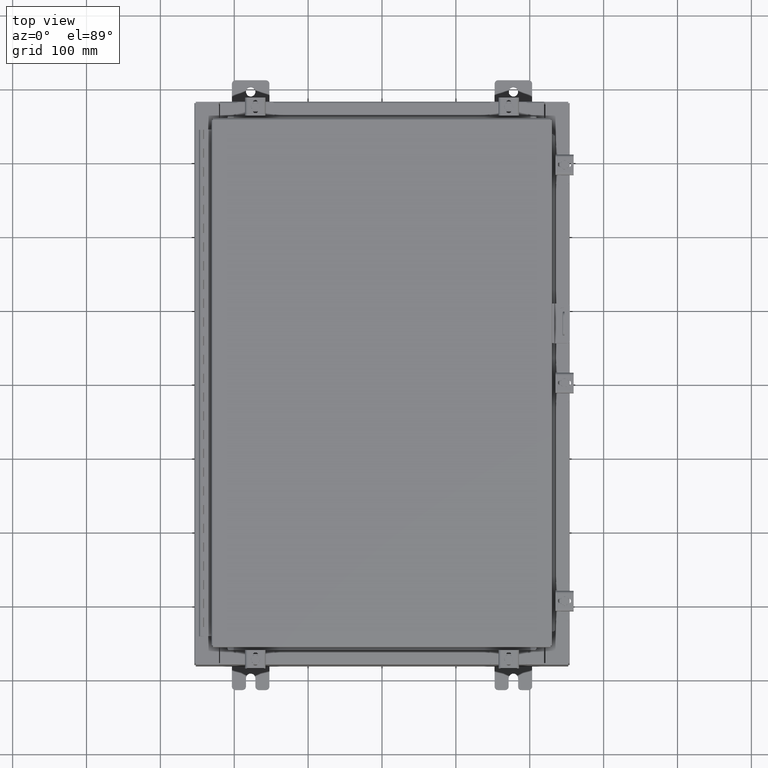
[diagram: clean part render]
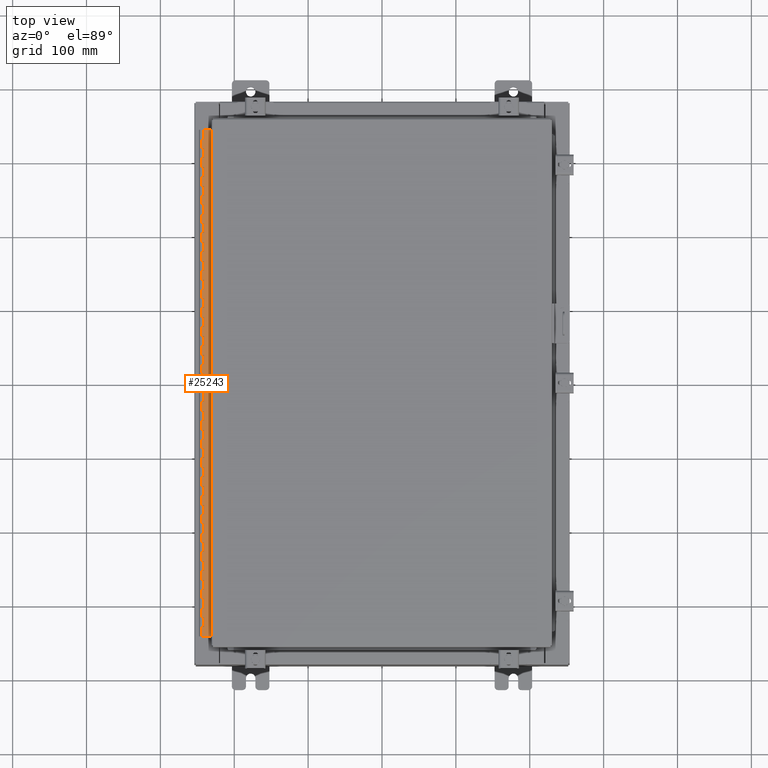
[diagram: same view with one face highlighted and labeled with its STEP entity id]
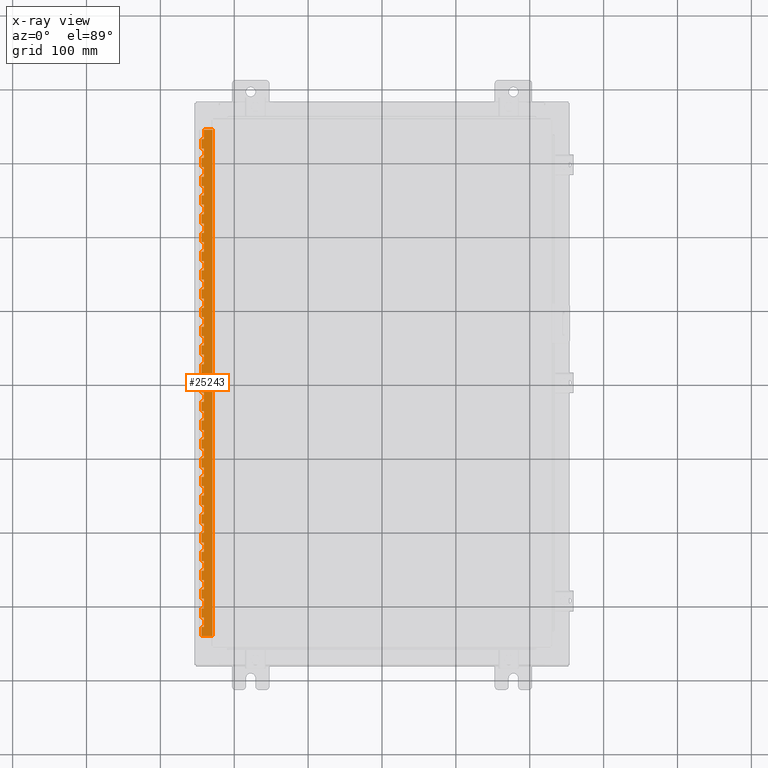
[diagram: x-ray of the same camera — body ghosted, the highlighted face saturated]
A machine part, top view. The second image highlights one B-rep face of the part: STEP entity #25243.
The next image is the same camera in x-ray: the body ghosted, the highlighted face saturated — about 0% of this face is hidden behind the body in this view.
In plain terms, the highlighted planar face has unit normal (-0, -0, 1).
Its self-contained STEP definition (entity closure, byte-faithful):
#96 = CARTESIAN_POINT ( 'NONE',  ( -0.6869999999999973900, 0.8004999999999995500, -19.50000000000000000 ) ) ;
#202 = VERTEX_POINT ( 'NONE', #20913 ) ;
#212 = CARTESIAN_POINT ( 'NONE',  ( -0.6870000000000022800, -0.6245000000000003900, -27.00000000000000000 ) ) ;
#273 = VECTOR ( 'NONE', #26525, 39.37007874015748100 ) ;
#278 = CARTESIAN_POINT ( 'NONE',  ( -0.6869999999999978300, 0.6754999999999996600, -14.49999999999999800 ) ) ;
#305 = EDGE_CURVE ( 'NONE', #10207, #18682, #30653, .T. ) ;
#378 = CARTESIAN_POINT ( 'NONE',  ( -0.6869999999999978300, 0.6754999999999996600, -11.50000000000000000 ) ) ;
#398 = VECTOR ( 'NONE', #5989, 39.37007874015748100 ) ;
#456 = CARTESIAN_POINT ( 'NONE',  ( -0.6869999999999978300, 0.6754999999999996600, -27.00000000000000000 ) ) ;
#482 = EDGE_CURVE ( 'NONE', #37478, #13305, #18398, .T. ) ;
#485 = VERTEX_POINT ( 'NONE', #8379 ) ;
#647 = VECTOR ( 'NONE', #34287, 39.37007874015748100 ) ;
#774 = EDGE_CURVE ( 'NONE', #15965, #28206, #22893, .T. ) ;
#845 = VERTEX_POINT ( 'NONE', #16582 ) ;
#847 = EDGE_CURVE ( 'NONE', #31543, #26618, #20155, .T. ) ;
#923 = DIRECTION ( 'NONE',  ( 0.0000000000000000000, -0.0000000000000000000, -1.000000000000000000 ) ) ;
#927 = VERTEX_POINT ( 'NONE', #34312 ) ;
#1064 = DIRECTION ( 'NONE',  ( -3.389037039080723100E-015, -1.000000000000000000, 0.0000000000000000000 ) ) ;
#1088 = DIRECTION ( 'NONE',  ( 0.0000000000000000000, 0.0000000000000000000, 1.000000000000000000 ) ) ;
#1165 = VERTEX_POINT ( 'NONE', #36440 ) ;
#1166 = VERTEX_POINT ( 'NONE', #36307 ) ;
#1186 = CARTESIAN_POINT ( 'NONE',  ( -0.6869999999999973900, 0.8004999999999995500, -9.500000000000000000 ) ) ;
#1190 = CARTESIAN_POINT ( 'NONE',  ( -0.6869999999999982800, 0.5504999999999997700, -18.50000000000000000 ) ) ;
#1224 = DIRECTION ( 'NONE',  ( 3.389037039080723100E-015, 1.000000000000000000, -0.0000000000000000000 ) ) ;
#1226 = DIRECTION ( 'NONE',  ( 0.0000000000000000000, 0.0000000000000000000, 1.000000000000000000 ) ) ;
#1231 = VECTOR ( 'NONE', #25844, 39.37007874015748100 ) ;
#1258 = LINE ( 'NONE', #32662, #13910 ) ;
#1355 = VECTOR ( 'NONE', #8014, 39.37007874015748100 ) ;
#1372 = CARTESIAN_POINT ( 'NONE',  ( -0.6869999999999978300, 0.6754999999999996600, -2.999999999999999600 ) ) ;
#1589 = VECTOR ( 'NONE', #1845, 39.37007874015748100 ) ;
#1604 = CARTESIAN_POINT ( 'NONE',  ( -0.6869999999999978300, 0.6754999999999996600, -27.00000000000000000 ) ) ;
#1677 = LINE ( 'NONE', #29023, #23802 ) ;
#1828 = CARTESIAN_POINT ( 'NONE',  ( -0.6869999999999978300, 0.6754999999999996600, -24.50000000000000000 ) ) ;
#1845 = DIRECTION ( 'NONE',  ( -3.389037039080723100E-015, -1.000000000000000000, 0.0000000000000000000 ) ) ;
#1935 = CARTESIAN_POINT ( 'NONE',  ( -0.6869999999999978300, 0.6754999999999996600, -19.00000000000000000 ) ) ;
#1938 = VERTEX_POINT ( 'NONE', #13191 ) ;
#1953 = VERTEX_POINT ( 'NONE', #12191 ) ;
#2047 = DIRECTION ( 'NONE',  ( 0.0000000000000000000, 0.0000000000000000000, 1.000000000000000000 ) ) ;
#2092 = VECTOR ( 'NONE', #23155, 39.37007874015748100 ) ;
#2165 = VECTOR ( 'NONE', #22379, 39.37007874015748100 ) ;
#2255 = CARTESIAN_POINT ( 'NONE',  ( -0.6869999999999982800, 0.5504999999999997700, -2.000000000000000000 ) ) ;
#2446 = DIRECTION ( 'NONE',  ( 0.0000000000000000000, 0.0000000000000000000, 1.000000000000000000 ) ) ;
#2447 = EDGE_CURVE ( 'NONE', #29551, #18385, #3420, .T. ) ;
#2461 = VERTEX_POINT ( 'NONE', #24150 ) ;
#2464 = LINE ( 'NONE', #32481, #32352 ) ;
#2517 = EDGE_CURVE ( 'NONE', #19735, #11133, #37340, .T. ) ;
#2545 = VERTEX_POINT ( 'NONE', #16800 ) ;
#2581 = VERTEX_POINT ( 'NONE', #12394 ) ;
#2625 = CARTESIAN_POINT ( 'NONE',  ( -0.6869999999999982800, 0.5504999999999997700, -21.50000000000000400 ) ) ;
#2673 = VECTOR ( 'NONE', #27274, 39.37007874015748100 ) ;
#2697 = ORIENTED_EDGE ( 'NONE', *, *, #16020, .F. ) ;
#2702 = VECTOR ( 'NONE', #2047, 39.37007874015748100 ) ;
#2739 = DIRECTION ( 'NONE',  ( 3.389037039080723100E-015, 1.000000000000000000, -0.0000000000000000000 ) ) ;
#2764 = VERTEX_POINT ( 'NONE', #19579 ) ;
#2771 = CARTESIAN_POINT ( 'NONE',  ( -0.6869999999999978300, 0.6754999999999996600, -20.50000000000000400 ) ) ;
#2805 = DIRECTION ( 'NONE',  ( 3.389037039080723100E-015, 1.000000000000000000, -0.0000000000000000000 ) ) ;
#2907 = ORIENTED_EDGE ( 'NONE', *, *, #28832, .F. ) ;
#2936 = CARTESIAN_POINT ( 'NONE',  ( -0.6869999999999973900, 0.8004999999999995500, -18.50000000000000000 ) ) ;
#2949 = CARTESIAN_POINT ( 'NONE',  ( -0.6869999999999982800, 0.5504999999999997700, -8.500000000000000000 ) ) ;
#2993 = LINE ( 'NONE', #30645, #32878 ) ;
#3126 = CARTESIAN_POINT ( 'NONE',  ( -0.6869999999999982800, 0.5504999999999997700, -7.499999999999999100 ) ) ;
#3153 = DIRECTION ( 'NONE',  ( 0.0000000000000000000, -0.0000000000000000000, -1.000000000000000000 ) ) ;
#3246 = CARTESIAN_POINT ( 'NONE',  ( -0.6869999999999982800, 0.5504999999999997700, -19.00000000000000000 ) ) ;
#3259 = VERTEX_POINT ( 'NONE', #21162 ) ;
#3294 = ORIENTED_EDGE ( 'NONE', *, *, #29656, .T. ) ;
#3301 = CARTESIAN_POINT ( 'NONE',  ( -0.6869999999999973900, 0.8004999999999995500, -23.00000000000000000 ) ) ;
#3410 = DIRECTION ( 'NONE',  ( 0.0000000000000000000, 0.0000000000000000000, 1.000000000000000000 ) ) ;
#3412 = LINE ( 'NONE', #35311, #33286 ) ;
#3417 = EDGE_CURVE ( 'NONE', #11512, #11133, #16016, .T. ) ;
#3420 = LINE ( 'NONE', #25643, #17857 ) ;
#3430 = VECTOR ( 'NONE', #1064, 39.37007874015748100 ) ;
#3540 = CARTESIAN_POINT ( 'NONE',  ( -0.6869999999999982800, 0.5504999999999997700, -12.49999999999999800 ) ) ;
#3549 = VECTOR ( 'NONE', #13061, 39.37007874015748100 ) ;
#3553 = DIRECTION ( 'NONE',  ( 0.0000000000000000000, -0.0000000000000000000, -1.000000000000000000 ) ) ;
#3590 = VERTEX_POINT ( 'NONE', #14940 ) ;
#3619 = ORIENTED_EDGE ( 'NONE', *, *, #35628, .T. ) ;
#3732 = ORIENTED_EDGE ( 'NONE', *, *, #13611, .F. ) ;
#3733 = VECTOR ( 'NONE', #7629, 39.37007874015748100 ) ;
#3757 = CARTESIAN_POINT ( 'NONE',  ( -0.6869999999999978300, 0.6754999999999996600, -26.00000000000000000 ) ) ;
#3759 = VECTOR ( 'NONE', #24900, 39.37007874015748100 ) ;
#3774 = VERTEX_POINT ( 'NONE', #27542 ) ;
#3827 = ORIENTED_EDGE ( 'NONE', *, *, #35030, .F. ) ;
#3919 = ORIENTED_EDGE ( 'NONE', *, *, #847, .F. ) ;
#3944 = VECTOR ( 'NONE', #8244, 39.37007874015748100 ) ;
#3974 = DIRECTION ( 'NONE',  ( 0.0000000000000000000, -0.0000000000000000000, -1.000000000000000000 ) ) ;
#3982 = LINE ( 'NONE', #14604, #32070 ) ;
#4008 = CARTESIAN_POINT ( 'NONE',  ( -0.6869999999999973900, 0.8004999999999995500, -26.00000000000000000 ) ) ;
#4052 = CARTESIAN_POINT ( 'NONE',  ( -0.6869999999999982800, 0.5504999999999997700, -14.49999999999999800 ) ) ;
#4057 = CARTESIAN_POINT ( 'NONE',  ( -0.6869999999999978300, 0.6754999999999996600, -13.50000000000000000 ) ) ;
#4066 = DIRECTION ( 'NONE',  ( 0.0000000000000000000, -0.0000000000000000000, -1.000000000000000000 ) ) ;
#4100 = ORIENTED_EDGE ( 'NONE', *, *, #8258, .F. ) ;
#4168 = EDGE_CURVE ( 'NONE', #19735, #3590, #29979, .T. ) ;
#4224 = VERTEX_POINT ( 'NONE', #30616 ) ;
#4229 = LINE ( 'NONE', #20420, #34123 ) ;
#4331 = VECTOR ( 'NONE', #37332, 39.37007874015748100 ) ;
#4403 = LINE ( 'NONE', #17787, #32483 ) ;
#4422 = LINE ( 'NONE', #33749, #17966 ) ;
#4468 = CARTESIAN_POINT ( 'NONE',  ( -0.6869999999999982800, 0.5504999999999997700, -10.50000000000000000 ) ) ;
#4474 = EDGE_CURVE ( 'NONE', #24955, #12399, #20852, .T. ) ;
#4679 = CARTESIAN_POINT ( 'NONE',  ( -0.6869999999999978300, 0.6754999999999996600, -27.00000000000000000 ) ) ;
#4801 = CARTESIAN_POINT ( 'NONE',  ( -0.6869999999999978300, 0.6754999999999996600, -15.50000000000000000 ) ) ;
#4918 = CARTESIAN_POINT ( 'NONE',  ( -0.6869999999999978300, 0.6754999999999996600, -27.00000000000000000 ) ) ;
#4966 = LINE ( 'NONE', #36495, #11745 ) ;
#5016 = VECTOR ( 'NONE', #30518, 39.37007874015748100 ) ;
#5044 = LINE ( 'NONE', #8252, #12750 ) ;
#5047 = CARTESIAN_POINT ( 'NONE',  ( -0.6869999999999973900, 0.8004999999999995500, -20.50000000000000400 ) ) ;
#5094 = CARTESIAN_POINT ( 'NONE',  ( -0.6869999999999978300, 0.6754999999999996600, -27.00000000000000000 ) ) ;
#5116 = VECTOR ( 'NONE', #30254, 39.37007874015748100 ) ;
#5182 = LINE ( 'NONE', #21392, #19634 ) ;
#5216 = ORIENTED_EDGE ( 'NONE', *, *, #35507, .T. ) ;
#5244 = VECTOR ( 'NONE', #3974, 39.37007874015748100 ) ;
#5262 = EDGE_CURVE ( 'NONE', #14202, #845, #13625, .T. ) ;
#5280 = CARTESIAN_POINT ( 'NONE',  ( -0.6869999999999973900, 0.8004999999999995500, -15.50000000000000000 ) ) ;
#5309 = ORIENTED_EDGE ( 'NONE', *, *, #12689, .F. ) ;
#5332 = VECTOR ( 'NONE', #21463, 39.37007874015748100 ) ;
#5343 = LINE ( 'NONE', #15665, #17983 ) ;
#5401 = VECTOR ( 'NONE', #34110, 39.37007874015748100 ) ;
#5413 = CARTESIAN_POINT ( 'NONE',  ( -0.6869999999999978300, 0.6754999999999996600, -18.50000000000000000 ) ) ;
#5469 = CARTESIAN_POINT ( 'NONE',  ( -0.6869999999999982800, 0.5504999999999997700, -16.50000000000000000 ) ) ;
#5491 = VECTOR ( 'NONE', #35825, 39.37007874015748100 ) ;
#5561 = CARTESIAN_POINT ( 'NONE',  ( -0.6869999999999978300, 0.6754999999999996600, -17.50000000000000000 ) ) ;
#5629 = VERTEX_POINT ( 'NONE', #27363 ) ;
#5696 = ORIENTED_EDGE ( 'NONE', *, *, #25864, .F. ) ;
#5752 = ORIENTED_EDGE ( 'NONE', *, *, #34061, .F. ) ;
#5787 = LINE ( 'NONE', #5280, #29757 ) ;
#5863 = LINE ( 'NONE', #8335, #6776 ) ;
#5989 = DIRECTION ( 'NONE',  ( 0.0000000000000000000, -0.0000000000000000000, -1.000000000000000000 ) ) ;
#6055 = CARTESIAN_POINT ( 'NONE',  ( -0.6869999999999978300, 0.6754999999999996600, -12.99999999999999800 ) ) ;
#6076 = VERTEX_POINT ( 'NONE', #9230 ) ;
#6150 = VERTEX_POINT ( 'NONE', #15293 ) ;
#6151 = DIRECTION ( 'NONE',  ( 0.0000000000000000000, 0.0000000000000000000, 1.000000000000000000 ) ) ;
#6157 = CARTESIAN_POINT ( 'NONE',  ( -0.6869999999999978300, 0.6754999999999996600, -22.50000000000000000 ) ) ;
#6218 = DIRECTION ( 'NONE',  ( 3.389037039080723100E-015, 1.000000000000000000, -0.0000000000000000000 ) ) ;
#6285 = DIRECTION ( 'NONE',  ( 0.0000000000000000000, 0.0000000000000000000, 1.000000000000000000 ) ) ;
#6296 = DIRECTION ( 'NONE',  ( 0.0000000000000000000, -0.0000000000000000000, -1.000000000000000000 ) ) ;
#6356 = CARTESIAN_POINT ( 'NONE',  ( -0.6869999999999978300, 0.6754999999999996600, -27.00000000000000000 ) ) ;
#6373 = DIRECTION ( 'NONE',  ( 3.389037039080723100E-015, 1.000000000000000000, -0.0000000000000000000 ) ) ;
#6375 = LINE ( 'NONE', #23010, #12238 ) ;
#6396 = CARTESIAN_POINT ( 'NONE',  ( -0.6869999999999982800, 0.5504999999999997700, -26.00000000000000000 ) ) ;
#6416 = LINE ( 'NONE', #18472, #5491 ) ;
#6458 = ORIENTED_EDGE ( 'NONE', *, *, #30300, .F. ) ;
#6470 = ORIENTED_EDGE ( 'NONE', *, *, #305, .F. ) ;
#6476 = DIRECTION ( 'NONE',  ( 0.0000000000000000000, -0.0000000000000000000, -1.000000000000000000 ) ) ;
#6575 = VECTOR ( 'NONE', #2739, 39.37007874015748100 ) ;
#6607 = DIRECTION ( 'NONE',  ( -3.389037039080723100E-015, -1.000000000000000000, 0.0000000000000000000 ) ) ;
#6669 = LINE ( 'NONE', #4008, #13459 ) ;
#6716 = CARTESIAN_POINT ( 'NONE',  ( -0.6869999999999973900, 0.8004999999999995500, -1.499999999999999800 ) ) ;
#6719 = CARTESIAN_POINT ( 'NONE',  ( -0.6869999999999982800, 0.5504999999999997700, -15.50000000000000000 ) ) ;
#6776 = VECTOR ( 'NONE', #28540, 39.37007874015748100 ) ;
#6788 = CARTESIAN_POINT ( 'NONE',  ( -0.6869999999999978300, 0.6754999999999996600, -6.499999999999999100 ) ) ;
#6789 = VECTOR ( 'NONE', #18883, 39.37007874015748100 ) ;
#6806 = VECTOR ( 'NONE', #6476, 39.37007874015748100 ) ;
#6839 = LINE ( 'NONE', #33438, #5016 ) ;
#6846 = EDGE_CURVE ( 'NONE', #3774, #28206, #35278, .T. ) ;
#6882 = ORIENTED_EDGE ( 'NONE', *, *, #35044, .F. ) ;
#6888 = CARTESIAN_POINT ( 'NONE',  ( -0.6869999999999978300, 0.6754999999999996600, -27.00000000000000000 ) ) ;
#6943 = DIRECTION ( 'NONE',  ( 3.389037039080723100E-015, 1.000000000000000000, -0.0000000000000000000 ) ) ;
#6962 = ORIENTED_EDGE ( 'NONE', *, *, #10680, .F. ) ;
#7019 = CARTESIAN_POINT ( 'NONE',  ( -0.6869999999999982800, 0.5504999999999997700, -15.50000000000000000 ) ) ;
#7120 = DIRECTION ( 'NONE',  ( 3.389037039080723100E-015, 1.000000000000000000, -0.0000000000000000000 ) ) ;
#7204 = VECTOR ( 'NONE', #12691, 39.37007874015748100 ) ;
#7223 = VECTOR ( 'NONE', #30038, 39.37007874015748100 ) ;
#7252 = EDGE_CURVE ( 'NONE', #1938, #16841, #13981, .T. ) ;
#7269 = CARTESIAN_POINT ( 'NONE',  ( -0.6869999999999982800, 0.5504999999999997700, -9.000000000000000000 ) ) ;
#7284 = LINE ( 'NONE', #8248, #23542 ) ;
#7328 = EDGE_CURVE ( 'NONE', #12734, #12399, #33437, .T. ) ;
#7342 = VERTEX_POINT ( 'NONE', #27611 ) ;
#7358 = DIRECTION ( 'NONE',  ( 3.389037039080723100E-015, 1.000000000000000000, -0.0000000000000000000 ) ) ;
#7374 = CARTESIAN_POINT ( 'NONE',  ( -0.6869999999999978300, 0.6754999999999996600, -4.000000000000000000 ) ) ;
#7377 = DIRECTION ( 'NONE',  ( 3.389037039080723100E-015, 1.000000000000000000, -0.0000000000000000000 ) ) ;
#7403 = VERTEX_POINT ( 'NONE', #1828 ) ;
#7445 = ORIENTED_EDGE ( 'NONE', *, *, #25759, .F. ) ;
#7474 = CARTESIAN_POINT ( 'NONE',  ( -0.6869999999999978300, 0.6754999999999996600, -8.500000000000000000 ) ) ;
#7515 = EDGE_CURVE ( 'NONE', #34659, #9099, #14415, .T. ) ;
#7534 = PLANE ( 'NONE',  #36790 ) ;
#7629 = DIRECTION ( 'NONE',  ( 3.389037039080723100E-015, 1.000000000000000000, -0.0000000000000000000 ) ) ;
#7664 = CARTESIAN_POINT ( 'NONE',  ( -0.6869999999999982800, 0.5504999999999997700, -25.50000000000000400 ) ) ;
#7720 = EDGE_CURVE ( 'NONE', #4224, #13609, #22511, .T. ) ;
#7879 = ORIENTED_EDGE ( 'NONE', *, *, #28423, .T. ) ;
#7939 = DIRECTION ( 'NONE',  ( 3.389037039080723100E-015, 1.000000000000000000, -0.0000000000000000000 ) ) ;
#7948 = EDGE_CURVE ( 'NONE', #27146, #14503, #23861, .T. ) ;
#7956 = LINE ( 'NONE', #20683, #273 ) ;
#8014 = DIRECTION ( 'NONE',  ( 0.0000000000000000000, 0.0000000000000000000, 1.000000000000000000 ) ) ;
#8065 = DIRECTION ( 'NONE',  ( 0.0000000000000000000, 0.0000000000000000000, 1.000000000000000000 ) ) ;
#8068 = LINE ( 'NONE', #456, #16647 ) ;
#8079 = LINE ( 'NONE', #8883, #398 ) ;
#8097 = LINE ( 'NONE', #5047, #37058 ) ;
#8118 = CARTESIAN_POINT ( 'NONE',  ( -0.6869999999999973900, 0.8004999999999995500, -21.50000000000000400 ) ) ;
#8244 = DIRECTION ( 'NONE',  ( 0.0000000000000000000, 0.0000000000000000000, 1.000000000000000000 ) ) ;
#8248 = CARTESIAN_POINT ( 'NONE',  ( -0.6869999999999982800, 0.5504999999999997700, -24.50000000000000000 ) ) ;
#8252 = CARTESIAN_POINT ( 'NONE',  ( -0.6869999999999998300, 0.07549999999999991400, -27.00000000000000000 ) ) ;
#8258 = EDGE_CURVE ( 'NONE', #7403, #13856, #1258, .T. ) ;
#8299 = ORIENTED_EDGE ( 'NONE', *, *, #7328, .T. ) ;
#8310 = CARTESIAN_POINT ( 'NONE',  ( -0.6870000000000022800, -0.6245000000000003900, 0.0000000000000000000 ) ) ;
#8335 = CARTESIAN_POINT ( 'NONE',  ( -0.6869999999999978300, 0.6754999999999996600, -27.00000000000000000 ) ) ;
#8379 = CARTESIAN_POINT ( 'NONE',  ( -0.6869999999999978300, 0.6754999999999996600, -2.500000000000000000 ) ) ;
#8535 = CARTESIAN_POINT ( 'NONE',  ( -0.6869999999999982800, 0.5504999999999997700, -23.50000000000000000 ) ) ;
#8542 = CARTESIAN_POINT ( 'NONE',  ( -0.6869999999999978300, 0.6754999999999996600, -27.00000000000000000 ) ) ;
#8550 = CARTESIAN_POINT ( 'NONE',  ( -0.6869999999999982800, 0.5504999999999997700, -17.00000000000000000 ) ) ;
#8569 = DIRECTION ( 'NONE',  ( 3.389037039080723100E-015, 1.000000000000000000, -0.0000000000000000000 ) ) ;
#8598 = ORIENTED_EDGE ( 'NONE', *, *, #17913, .F. ) ;
#8663 = ORIENTED_EDGE ( 'NONE', *, *, #25357, .T. ) ;
#8684 = ORIENTED_EDGE ( 'NONE', *, *, #3417, .F. ) ;
#8735 = ORIENTED_EDGE ( 'NONE', *, *, #21145, .F. ) ;
#8759 = CARTESIAN_POINT ( 'NONE',  ( -0.6869999999999982800, 0.5504999999999997700, -13.50000000000000000 ) ) ;
#8799 = DIRECTION ( 'NONE',  ( 0.0000000000000000000, -0.0000000000000000000, -1.000000000000000000 ) ) ;
#8883 = CARTESIAN_POINT ( 'NONE',  ( -0.6869999999999982800, 0.5504999999999997700, -9.500000000000000000 ) ) ;
#8930 = CARTESIAN_POINT ( 'NONE',  ( -0.6869999999999982800, 0.5504999999999997700, -19.50000000000000000 ) ) ;
#9008 = ORIENTED_EDGE ( 'NONE', *, *, #31308, .F. ) ;
#9028 = EDGE_CURVE ( 'NONE', #23370, #2581, #37372, .T. ) ;
#9029 = ORIENTED_EDGE ( 'NONE', *, *, #12764, .F. ) ;
#9070 = DIRECTION ( 'NONE',  ( 3.389037039080723100E-015, 1.000000000000000000, -0.0000000000000000000 ) ) ;
#9099 = VERTEX_POINT ( 'NONE', #2625 ) ;
#9136 = VERTEX_POINT ( 'NONE', #14376 ) ;
#9142 = VERTEX_POINT ( 'NONE', #8550 ) ;
#9230 = CARTESIAN_POINT ( 'NONE',  ( -0.6869999999999978300, 0.6754999999999996600, -11.00000000000000000 ) ) ;
#9327 = CARTESIAN_POINT ( 'NONE',  ( -0.6869999999999982800, 0.5504999999999997700, -14.99999999999999800 ) ) ;
#9392 = EDGE_CURVE ( 'NONE', #18682, #16841, #33304, .T. ) ;
#9444 = LINE ( 'NONE', #28126, #23910 ) ;
#9646 = CARTESIAN_POINT ( 'NONE',  ( -0.6869999999999978300, 0.6754999999999996600, -10.00000000000000000 ) ) ;
#9680 = LINE ( 'NONE', #25802, #16463 ) ;
#9764 = LINE ( 'NONE', #18729, #24234 ) ;
#9770 = VECTOR ( 'NONE', #17751, 39.37007874015748100 ) ;
#9827 = VECTOR ( 'NONE', #8569, 39.37007874015748100 ) ;
#9860 = DIRECTION ( 'NONE',  ( 0.0000000000000000000, -0.0000000000000000000, -1.000000000000000000 ) ) ;
#9886 = LINE ( 'NONE', #16075, #25265 ) ;
#10082 = ORIENTED_EDGE ( 'NONE', *, *, #7720, .F. ) ;
#10086 = DIRECTION ( 'NONE',  ( 0.0000000000000000000, 0.0000000000000000000, 1.000000000000000000 ) ) ;
#10130 = VECTOR ( 'NONE', #30783, 39.37007874015748100 ) ;
#10145 = LINE ( 'NONE', #4468, #16930 ) ;
#10150 = DIRECTION ( 'NONE',  ( 0.0000000000000000000, -0.0000000000000000000, -1.000000000000000000 ) ) ;
#10207 = VERTEX_POINT ( 'NONE', #7019 ) ;
#10230 = DIRECTION ( 'NONE',  ( 3.389037039080723100E-015, 1.000000000000000000, -0.0000000000000000000 ) ) ;
#10347 = LINE ( 'NONE', #18524, #2673 ) ;
#10472 = VERTEX_POINT ( 'NONE', #31932 ) ;
#10680 = EDGE_CURVE ( 'NONE', #33646, #25115, #16446, .T. ) ;
#10736 = LINE ( 'NONE', #11330, #32941 ) ;
#10789 = EDGE_CURVE ( 'NONE', #27451, #27345, #29103, .T. ) ;
#10808 = CARTESIAN_POINT ( 'NONE',  ( -0.6869999999999978300, 0.6754999999999996600, -9.000000000000000000 ) ) ;
#10852 = VERTEX_POINT ( 'NONE', #24788 ) ;
#10911 = LINE ( 'NONE', #28521, #34042 ) ;
#10926 = VERTEX_POINT ( 'NONE', #27293 ) ;
#10943 = CARTESIAN_POINT ( 'NONE',  ( -0.6869999999999978300, 0.6754999999999996600, -27.00000000000000000 ) ) ;
#10944 = EDGE_CURVE ( 'NONE', #485, #23876, #22731, .T. ) ;
#11133 = VERTEX_POINT ( 'NONE', #10808 ) ;
#11187 = DIRECTION ( 'NONE',  ( 3.389037039080723100E-015, 1.000000000000000000, -0.0000000000000000000 ) ) ;
#11330 = CARTESIAN_POINT ( 'NONE',  ( -0.6869999999999973900, 0.8004999999999995500, -26.50000000000000400 ) ) ;
#11419 = VERTEX_POINT ( 'NONE', #6396 ) ;
#11452 = ORIENTED_EDGE ( 'NONE', *, *, #28011, .F. ) ;
#11494 = CARTESIAN_POINT ( 'NONE',  ( -0.6869999999999973900, 0.8004999999999995500, -5.000000000000000000 ) ) ;
#11512 = VERTEX_POINT ( 'NONE', #7269 ) ;
#11605 = VERTEX_POINT ( 'NONE', #36607 ) ;
#11656 = DIRECTION ( 'NONE',  ( 0.0000000000000000000, -0.0000000000000000000, -1.000000000000000000 ) ) ;
#11725 = EDGE_CURVE ( 'NONE', #14202, #35968, #5044, .T. ) ;
#11745 = VECTOR ( 'NONE', #16241, 39.37007874015748100 ) ;
#11850 = DIRECTION ( 'NONE',  ( 0.0000000000000000000, 0.0000000000000000000, 1.000000000000000000 ) ) ;
#11992 = EDGE_LOOP ( 'NONE', ( #25519, #28475, #14003, #32171, #23652, #16751, #22854, #20356, #34157, #23174, #36989, #4100, #7879, #25444, #13553, #28912, #24871, #10082, #8598, #36912, #8663, #18249, #6458, #35135, #3619, #36371, #29585, #5696, #12142, #9029, #29840, #15826, #36445, #11452, #32317, #6882, #34118, #33049, #36415, #23146, #5216, #33876, #16251, #12613, #30341, #28256, #6470, #24095, #20828, #34545, #2697, #23346, #3294, #3827, #33389, #31166, #31152, #22154, #33692, #34990, #16843, #34909, #6962, #9008, #30587, #7445, #17819, #32022, #30694, #22045, #21675, #24570, #29609, #8684, #25791, #3732, #16231, #29213, #32405, #2907, #36585, #14846, #13012, #27118, #30900, #35947, #22667, #24413, #8299, #15756, #29255, #12463, #24582, #5309, #29746, #3919, #27571, #29518, #20963, #29921, #30752, #29992, #22951, #20132, #12931, #8735, #5752, #20641, #24715, #27727 ) ) ;
#11997 = CARTESIAN_POINT ( 'NONE',  ( -0.6869999999999978300, 0.6754999999999996600, -4.500000000000000000 ) ) ;
#12051 = CARTESIAN_POINT ( 'NONE',  ( -0.6869999999999982800, 0.5504999999999997700, -11.00000000000000000 ) ) ;
#12090 = VECTOR ( 'NONE', #21439, 39.37007874015748100 ) ;
#12142 = ORIENTED_EDGE ( 'NONE', *, *, #9028, .T. ) ;
#12165 = VERTEX_POINT ( 'NONE', #16181 ) ;
#12191 = CARTESIAN_POINT ( 'NONE',  ( -0.6869999999999978300, 0.6754999999999996600, 0.0000000000000000000 ) ) ;
#12208 = VERTEX_POINT ( 'NONE', #4801 ) ;
#12236 = CARTESIAN_POINT ( 'NONE',  ( -0.6869999999999978300, 0.6754999999999996600, -21.00000000000000000 ) ) ;
#12238 = VECTOR ( 'NONE', #2805, 39.37007874015748100 ) ;
#12277 = VECTOR ( 'NONE', #4066, 39.37007874015748100 ) ;
#12292 = CARTESIAN_POINT ( 'NONE',  ( -0.6869999999999982800, 0.5504999999999997700, -13.50000000000000000 ) ) ;
#12369 = CARTESIAN_POINT ( 'NONE',  ( -0.6869999999999978300, 0.6754999999999996600, -14.00000000000000000 ) ) ;
#12394 = CARTESIAN_POINT ( 'NONE',  ( -0.6869999999999978300, 0.6754999999999996600, -20.00000000000000000 ) ) ;
#12399 = VERTEX_POINT ( 'NONE', #22905 ) ;
#12463 = ORIENTED_EDGE ( 'NONE', *, *, #14680, .F. ) ;
#12533 = VERTEX_POINT ( 'NONE', #12051 ) ;
#12554 = EDGE_CURVE ( 'NONE', #6150, #18695, #33130, .T. ) ;
#12613 = ORIENTED_EDGE ( 'NONE', *, *, #25251, .F. ) ;
#12689 = EDGE_CURVE ( 'NONE', #927, #15070, #6416, .T. ) ;
#12691 = DIRECTION ( 'NONE',  ( 0.0000000000000000000, 0.0000000000000000000, 1.000000000000000000 ) ) ;
#12692 = EDGE_CURVE ( 'NONE', #34942, #20453, #20824, .T. ) ;
#12734 = VERTEX_POINT ( 'NONE', #33184 ) ;
#12750 = VECTOR ( 'NONE', #2446, 39.37007874015748100 ) ;
#12764 = EDGE_CURVE ( 'NONE', #27799, #2581, #17226, .T. ) ;
#12823 = VERTEX_POINT ( 'NONE', #27728 ) ;
#12931 = ORIENTED_EDGE ( 'NONE', *, *, #25361, .T. ) ;
#12949 = LINE ( 'NONE', #27126, #5244 ) ;
#13012 = ORIENTED_EDGE ( 'NONE', *, *, #16412, .F. ) ;
#13040 = LINE ( 'NONE', #15670, #5332 ) ;
#13061 = DIRECTION ( 'NONE',  ( 0.0000000000000000000, 0.0000000000000000000, 1.000000000000000000 ) ) ;
#13098 = VECTOR ( 'NONE', #25805, 39.37007874015748100 ) ;
#13106 = VERTEX_POINT ( 'NONE', #278 ) ;
#13158 = CARTESIAN_POINT ( 'NONE',  ( -0.6869999999999973900, 0.8004999999999995500, -6.000000000000000900 ) ) ;
#13162 = CARTESIAN_POINT ( 'NONE',  ( -0.6869999999999982800, 0.5504999999999997700, -23.99999999999999600 ) ) ;
#13191 = CARTESIAN_POINT ( 'NONE',  ( -0.6869999999999978300, 0.6754999999999996600, -16.50000000000000000 ) ) ;
#13305 = VERTEX_POINT ( 'NONE', #29956 ) ;
#13350 = DIRECTION ( 'NONE',  ( 1.000000000000000000, -3.369016658928398200E-015, 0.0000000000000000000 ) ) ;
#13459 = VECTOR ( 'NONE', #6943, 39.37007874015748100 ) ;
#13553 = ORIENTED_EDGE ( 'NONE', *, *, #16993, .F. ) ;
#13584 = FACE_OUTER_BOUND ( 'NONE', #11992, .T. ) ;
#13609 = VERTEX_POINT ( 'NONE', #27179 ) ;
#13611 = EDGE_CURVE ( 'NONE', #33652, #32036, #5343, .T. ) ;
#13625 = LINE ( 'NONE', #212, #27186 ) ;
#13631 = CARTESIAN_POINT ( 'NONE',  ( -0.6869999999999973900, 0.8004999999999995500, -14.49999999999999800 ) ) ;
#13694 = VERTEX_POINT ( 'NONE', #16054 ) ;
#13856 = VERTEX_POINT ( 'NONE', #13895 ) ;
#13861 = CARTESIAN_POINT ( 'NONE',  ( -0.6869999999999973900, 0.8004999999999995500, -10.00000000000000000 ) ) ;
#13895 = CARTESIAN_POINT ( 'NONE',  ( -0.6869999999999982800, 0.5504999999999997700, -24.50000000000000000 ) ) ;
#13910 = VECTOR ( 'NONE', #6607, 39.37007874015748100 ) ;
#13981 = LINE ( 'NONE', #32937, #7204 ) ;
#13983 = EDGE_CURVE ( 'NONE', #24585, #20434, #37003, .T. ) ;
#14003 = ORIENTED_EDGE ( 'NONE', *, *, #17749, .F. ) ;
#14156 = CARTESIAN_POINT ( 'NONE',  ( -0.6869999999999982800, 0.5504999999999997700, -21.00000000000000000 ) ) ;
#14202 = VERTEX_POINT ( 'NONE', #21658 ) ;
#14271 = VECTOR ( 'NONE', #18719, 39.37007874015748100 ) ;
#14272 = DIRECTION ( 'NONE',  ( -3.389037039080723100E-015, -1.000000000000000000, 0.0000000000000000000 ) ) ;
#14326 = DIRECTION ( 'NONE',  ( -3.389037039080723100E-015, -1.000000000000000000, 0.0000000000000000000 ) ) ;
#14356 = DIRECTION ( 'NONE',  ( 0.0000000000000000000, -0.0000000000000000000, -1.000000000000000000 ) ) ;
#14367 = CARTESIAN_POINT ( 'NONE',  ( -0.6869999999999982800, 0.5504999999999997700, -22.00000000000000000 ) ) ;
#14376 = CARTESIAN_POINT ( 'NONE',  ( -0.6869999999999978300, 0.6754999999999996600, -8.000000000000000000 ) ) ;
#14415 = LINE ( 'NONE', #8118, #28887 ) ;
#14435 = CARTESIAN_POINT ( 'NONE',  ( -0.6869999999999973900, 0.8004999999999995500, -3.500000000000000000 ) ) ;
#14503 = VERTEX_POINT ( 'NONE', #26086 ) ;
#14536 = LINE ( 'NONE', #27205, #36731 ) ;
#14556 = DIRECTION ( 'NONE',  ( 0.0000000000000000000, -0.0000000000000000000, -1.000000000000000000 ) ) ;
#14591 = VECTOR ( 'NONE', #36087, 39.37007874015748100 ) ;
#14604 = CARTESIAN_POINT ( 'NONE',  ( -0.6869999999999973900, 0.8004999999999995500, -19.00000000000000000 ) ) ;
#14680 = EDGE_CURVE ( 'NONE', #37019, #15825, #21055, .T. ) ;
#14706 = CARTESIAN_POINT ( 'NONE',  ( -0.6869999999999978300, 0.6754999999999996600, -19.50000000000000000 ) ) ;
#14802 = EDGE_CURVE ( 'NONE', #10926, #31447, #9764, .T. ) ;
#14846 = ORIENTED_EDGE ( 'NONE', *, *, #12554, .F. ) ;
#14878 = CARTESIAN_POINT ( 'NONE',  ( -0.6869999999999978300, 0.6754999999999996600, -27.00000000000000000 ) ) ;
#14940 = CARTESIAN_POINT ( 'NONE',  ( -0.6869999999999982800, 0.5504999999999997700, -9.500000000000000000 ) ) ;
#14968 = EDGE_CURVE ( 'NONE', #12734, #23986, #34228, .T. ) ;
#15070 = VERTEX_POINT ( 'NONE', #7374 ) ;
#15172 = VERTEX_POINT ( 'NONE', #1935 ) ;
#15293 = CARTESIAN_POINT ( 'NONE',  ( -0.6869999999999982800, 0.5504999999999997700, -7.000000000000000000 ) ) ;
#15546 = CARTESIAN_POINT ( 'NONE',  ( -0.6869999999999982800, 0.5504999999999997700, -20.50000000000000400 ) ) ;
#15665 = CARTESIAN_POINT ( 'NONE',  ( -0.6869999999999973900, 0.8004999999999995500, -8.500000000000000000 ) ) ;
#15670 = CARTESIAN_POINT ( 'NONE',  ( -0.6869999999999973900, 0.8004999999999995500, -7.499999999999999100 ) ) ;
#15756 = ORIENTED_EDGE ( 'NONE', *, *, #4474, .F. ) ;
#15783 = LINE ( 'NONE', #30732, #16674 ) ;
#15825 = VERTEX_POINT ( 'NONE', #37396 ) ;
#15826 = ORIENTED_EDGE ( 'NONE', *, *, #13983, .F. ) ;
#15965 = VERTEX_POINT ( 'NONE', #20533 ) ;
#16016 = LINE ( 'NONE', #36820, #647 ) ;
#16020 = EDGE_CURVE ( 'NONE', #17736, #18257, #2464, .T. ) ;
#16054 = CARTESIAN_POINT ( 'NONE',  ( -0.6869999999999978300, 0.6754999999999996600, -23.99999999999999600 ) ) ;
#16057 = CARTESIAN_POINT ( 'NONE',  ( -0.6869999999999982800, 0.5504999999999997700, -11.50000000000000000 ) ) ;
#16075 = CARTESIAN_POINT ( 'NONE',  ( -0.6869999999999973900, 0.8004999999999995500, -11.00000000000000000 ) ) ;
#16091 = VECTOR ( 'NONE', #30223, 39.37007874015748100 ) ;
#16104 = CARTESIAN_POINT ( 'NONE',  ( -0.6869999999999973900, 0.8004999999999995500, -12.49999999999999800 ) ) ;
#16110 = VERTEX_POINT ( 'NONE', #18382 ) ;
#16166 = VERTEX_POINT ( 'NONE', #21540 ) ;
#16181 = CARTESIAN_POINT ( 'NONE',  ( -0.6869999999999982800, 0.5504999999999997700, -17.50000000000000000 ) ) ;
#16189 = DIRECTION ( 'NONE',  ( 0.0000000000000000000, -0.0000000000000000000, -1.000000000000000000 ) ) ;
#16231 = ORIENTED_EDGE ( 'NONE', *, *, #20470, .T. ) ;
#16241 = DIRECTION ( 'NONE',  ( -3.389037039080723100E-015, -1.000000000000000000, 0.0000000000000000000 ) ) ;
#16242 = CARTESIAN_POINT ( 'NONE',  ( -0.6869999999999978300, 0.6754999999999996600, -0.5000000000000000000 ) ) ;
#16250 = CARTESIAN_POINT ( 'NONE',  ( -0.6869999999999978300, 0.6754999999999996600, -1.000000000000000000 ) ) ;
#16251 = ORIENTED_EDGE ( 'NONE', *, *, #25469, .F. ) ;
#16253 = VECTOR ( 'NONE', #3553, 39.37007874015748100 ) ;
#16263 = VERTEX_POINT ( 'NONE', #16250 ) ;
#16315 = CARTESIAN_POINT ( 'NONE',  ( -0.6869999999999982800, 0.5504999999999997700, -22.50000000000000000 ) ) ;
#16334 = VERTEX_POINT ( 'NONE', #5413 ) ;
#16412 = EDGE_CURVE ( 'NONE', #3259, #6150, #35929, .T. ) ;
#16446 = LINE ( 'NONE', #23911, #30921 ) ;
#16463 = VECTOR ( 'NONE', #14326, 39.37007874015748100 ) ;
#16482 = EDGE_CURVE ( 'NONE', #10472, #31447, #4229, .T. ) ;
#16491 = VERTEX_POINT ( 'NONE', #378 ) ;
#16578 = LINE ( 'NONE', #8542, #1231 ) ;
#16582 = CARTESIAN_POINT ( 'NONE',  ( -0.6869999999999982800, 0.5504999999999997700, -27.00000000000000000 ) ) ;
#16597 = CARTESIAN_POINT ( 'NONE',  ( -0.6869999999999978300, 0.6754999999999996600, -27.00000000000000000 ) ) ;
#16647 = VECTOR ( 'NONE', #6151, 39.37007874015748100 ) ;
#16674 = VECTOR ( 'NONE', #16189, 39.37007874015748100 ) ;
#16694 = LINE ( 'NONE', #6888, #7223 ) ;
#16704 = VECTOR ( 'NONE', #36742, 39.37007874015748100 ) ;
#16751 = ORIENTED_EDGE ( 'NONE', *, *, #37119, .F. ) ;
#16800 = CARTESIAN_POINT ( 'NONE',  ( -0.6869999999999978300, 0.6754999999999996600, -23.50000000000000000 ) ) ;
#16841 = VERTEX_POINT ( 'NONE', #30800 ) ;
#16842 = VECTOR ( 'NONE', #14356, 39.37007874015748100 ) ;
#16843 = ORIENTED_EDGE ( 'NONE', *, *, #23135, .T. ) ;
#16908 = LINE ( 'NONE', #27889, #10130 ) ;
#16930 = VECTOR ( 'NONE', #21523, 39.37007874015748100 ) ;
#16979 = VERTEX_POINT ( 'NONE', #17115 ) ;
#16993 = EDGE_CURVE ( 'NONE', #29706, #23100, #24528, .T. ) ;
#17105 = VECTOR ( 'NONE', #3153, 39.37007874015748100 ) ;
#17115 = CARTESIAN_POINT ( 'NONE',  ( -0.6869999999999982800, 0.5504999999999997700, -2.999999999999999600 ) ) ;
#17192 = VECTOR ( 'NONE', #32781, 39.37007874015748100 ) ;
#17196 = VERTEX_POINT ( 'NONE', #23929 ) ;
#17226 = LINE ( 'NONE', #24668, #18125 ) ;
#17322 = CARTESIAN_POINT ( 'NONE',  ( -0.6869999999999978300, 0.6754999999999996600, -27.00000000000000000 ) ) ;
#17335 = EDGE_CURVE ( 'NONE', #2545, #13609, #34941, .T. ) ;
#17387 = DIRECTION ( 'NONE',  ( -3.389037039080723100E-015, -1.000000000000000000, 0.0000000000000000000 ) ) ;
#17545 = VECTOR ( 'NONE', #26562, 39.37007874015748100 ) ;
#17635 = CARTESIAN_POINT ( 'NONE',  ( -0.6869999999999973900, 0.8004999999999995500, -21.00000000000000000 ) ) ;
#17694 = CARTESIAN_POINT ( 'NONE',  ( -0.6869999999999982800, 0.5504999999999997700, -14.00000000000000000 ) ) ;
#17736 = VERTEX_POINT ( 'NONE', #4052 ) ;
#17749 = EDGE_CURVE ( 'NONE', #10852, #845, #14536, .T. ) ;
#17751 = DIRECTION ( 'NONE',  ( 0.0000000000000000000, 0.0000000000000000000, 1.000000000000000000 ) ) ;
#17787 = CARTESIAN_POINT ( 'NONE',  ( -0.6869999999999978300, 0.6754999999999996600, -27.00000000000000000 ) ) ;
#17819 = ORIENTED_EDGE ( 'NONE', *, *, #22519, .F. ) ;
#17857 = VECTOR ( 'NONE', #25398, 39.37007874015748100 ) ;
#17913 = EDGE_CURVE ( 'NONE', #202, #4224, #33105, .T. ) ;
#17966 = VECTOR ( 'NONE', #36525, 39.37007874015748100 ) ;
#17983 = VECTOR ( 'NONE', #30226, 39.37007874015748100 ) ;
#18125 = VECTOR ( 'NONE', #7377, 39.37007874015748100 ) ;
#18249 = ORIENTED_EDGE ( 'NONE', *, *, #482, .F. ) ;
#18257 = VERTEX_POINT ( 'NONE', #9327 ) ;
#18306 = CARTESIAN_POINT ( 'NONE',  ( -0.6869999999999982800, 0.5504999999999997700, -25.50000000000000400 ) ) ;
#18313 = VERTEX_POINT ( 'NONE', #3757 ) ;
#18359 = LINE ( 'NONE', #35117, #31986 ) ;
#18374 = CARTESIAN_POINT ( 'NONE',  ( -0.6869999999999978300, 0.6754999999999996600, -27.00000000000000000 ) ) ;
#18382 = CARTESIAN_POINT ( 'NONE',  ( -0.6869999999999978300, 0.6754999999999996600, -26.50000000000000400 ) ) ;
#18384 = VECTOR ( 'NONE', #27424, 39.37007874015748100 ) ;
#18385 = VERTEX_POINT ( 'NONE', #30089 ) ;
#18393 = CARTESIAN_POINT ( 'NONE',  ( -0.6869999999999998300, 0.07549999999999991400, 0.0000000000000000000 ) ) ;
#18398 = LINE ( 'NONE', #19240, #2165 ) ;
#18472 = CARTESIAN_POINT ( 'NONE',  ( -0.6869999999999973900, 0.8004999999999995500, -4.000000000000000000 ) ) ;
#18502 = DIRECTION ( 'NONE',  ( 0.0000000000000000000, -0.0000000000000000000, -1.000000000000000000 ) ) ;
#18524 = CARTESIAN_POINT ( 'NONE',  ( -0.6869999999999973900, 0.8004999999999995500, -17.50000000000000000 ) ) ;
#18590 = CARTESIAN_POINT ( 'NONE',  ( -0.6869999999999978300, 0.6754999999999996600, -27.00000000000000000 ) ) ;
#18669 = DIRECTION ( 'NONE',  ( -3.389037039080723100E-015, -1.000000000000000000, 0.0000000000000000000 ) ) ;
#18682 = VERTEX_POINT ( 'NONE', #31566 ) ;
#18695 = VERTEX_POINT ( 'NONE', #34479 ) ;
#18719 = DIRECTION ( 'NONE',  ( 0.0000000000000000000, 0.0000000000000000000, 1.000000000000000000 ) ) ;
#18729 = CARTESIAN_POINT ( 'NONE',  ( -0.6869999999999973900, 0.8004999999999995500, -24.99999999999999600 ) ) ;
#18833 = VECTOR ( 'NONE', #25602, 39.37007874015748100 ) ;
#18862 = CARTESIAN_POINT ( 'NONE',  ( -0.6869999999999978300, 0.6754999999999996600, -27.00000000000000000 ) ) ;
#18866 = LINE ( 'NONE', #24351, #12090 ) ;
#18883 = DIRECTION ( 'NONE',  ( 0.0000000000000000000, 0.0000000000000000000, 1.000000000000000000 ) ) ;
#18980 = EDGE_CURVE ( 'NONE', #485, #18385, #31193, .T. ) ;
#18983 = EDGE_CURVE ( 'NONE', #37019, #15070, #16694, .T. ) ;
#19089 = CARTESIAN_POINT ( 'NONE',  ( -0.6869999999999973900, 0.8004999999999995500, -14.99999999999999800 ) ) ;
#19119 = CARTESIAN_POINT ( 'NONE',  ( -0.6869999999999973900, 0.8004999999999995500, -10.50000000000000000 ) ) ;
#19230 = VECTOR ( 'NONE', #10086, 39.37007874015748100 ) ;
#19240 = CARTESIAN_POINT ( 'NONE',  ( -0.6869999999999973900, 0.8004999999999995500, -22.00000000000000000 ) ) ;
#19279 = VECTOR ( 'NONE', #24134, 39.37007874015748100 ) ;
#19365 = EDGE_CURVE ( 'NONE', #24585, #15172, #32996, .T. ) ;
#19579 = CARTESIAN_POINT ( 'NONE',  ( -0.6869999999999978300, 0.6754999999999996600, -14.99999999999999800 ) ) ;
#19634 = VECTOR ( 'NONE', #18502, 39.37007874015748100 ) ;
#19672 = DIRECTION ( 'NONE',  ( -3.389037039080723100E-015, -1.000000000000000000, 0.0000000000000000000 ) ) ;
#19678 = LINE ( 'NONE', #37207, #4331 ) ;
#19695 = VECTOR ( 'NONE', #1226, 39.37007874015748100 ) ;
#19733 = CARTESIAN_POINT ( 'NONE',  ( -0.6869999999999978300, 0.6754999999999996600, -24.99999999999999600 ) ) ;
#19735 = VERTEX_POINT ( 'NONE', #28197 ) ;
#19828 = VERTEX_POINT ( 'NONE', #14156 ) ;
#19992 = VERTEX_POINT ( 'NONE', #12236 ) ;
#20132 = ORIENTED_EDGE ( 'NONE', *, *, #33472, .F. ) ;
#20139 = VERTEX_POINT ( 'NONE', #1372 ) ;
#20155 = LINE ( 'NONE', #14435, #19279 ) ;
#20205 = DIRECTION ( 'NONE',  ( -3.389037039080723100E-015, -1.000000000000000000, 0.0000000000000000000 ) ) ;
#20253 = CARTESIAN_POINT ( 'NONE',  ( -0.6869999999999982800, 0.5504999999999997700, -23.50000000000000000 ) ) ;
#20356 = ORIENTED_EDGE ( 'NONE', *, *, #36423, .F. ) ;
#20420 = CARTESIAN_POINT ( 'NONE',  ( -0.6869999999999978300, 0.6754999999999996600, -27.00000000000000000 ) ) ;
#20425 = CARTESIAN_POINT ( 'NONE',  ( -0.6869999999999982800, 0.5504999999999997700, -2.500000000000000000 ) ) ;
#20434 = VERTEX_POINT ( 'NONE', #8930 ) ;
#20453 = VERTEX_POINT ( 'NONE', #3246 ) ;
#20470 = EDGE_CURVE ( 'NONE', #33652, #9136, #32892, .T. ) ;
#20482 = VECTOR ( 'NONE', #31876, 39.37007874015748100 ) ;
#20494 = EDGE_CURVE ( 'NONE', #16110, #18313, #18359, .T. ) ;
#20533 = CARTESIAN_POINT ( 'NONE',  ( -0.6869999999999978300, 0.6754999999999996600, -10.50000000000000000 ) ) ;
#20620 = EDGE_CURVE ( 'NONE', #12165, #35324, #12949, .T. ) ;
#20631 = EDGE_CURVE ( 'NONE', #27451, #35772, #27437, .T. ) ;
#20641 = ORIENTED_EDGE ( 'NONE', *, *, #30110, .F. ) ;
#20683 = CARTESIAN_POINT ( 'NONE',  ( -0.6869999999999978300, 0.6754999999999996600, -27.00000000000000000 ) ) ;
#20743 = LINE ( 'NONE', #28600, #13098 ) ;
#20745 = VECTOR ( 'NONE', #11656, 39.37007874015748100 ) ;
#20824 = LINE ( 'NONE', #1190, #12277 ) ;
#20828 = ORIENTED_EDGE ( 'NONE', *, *, #25205, .T. ) ;
#20837 = DIRECTION ( 'NONE',  ( -3.389037039080723100E-015, -1.000000000000000000, 0.0000000000000000000 ) ) ;
#20852 = LINE ( 'NONE', #11494, #29500 ) ;
#20857 = VECTOR ( 'NONE', #6296, 39.37007874015748100 ) ;
#20913 = CARTESIAN_POINT ( 'NONE',  ( -0.6869999999999982800, 0.5504999999999997700, -22.50000000000000000 ) ) ;
#20963 = ORIENTED_EDGE ( 'NONE', *, *, #26046, .F. ) ;
#21016 = EDGE_CURVE ( 'NONE', #32036, #11512, #23301, .T. ) ;
#21055 = LINE ( 'NONE', #24035, #35581 ) ;
#21087 = LINE ( 'NONE', #33751, #35614 ) ;
#21145 = EDGE_CURVE ( 'NONE', #36356, #16263, #3412, .T. ) ;
#21157 = VECTOR ( 'NONE', #14556, 39.37007874015748100 ) ;
#21162 = CARTESIAN_POINT ( 'NONE',  ( -0.6869999999999982800, 0.5504999999999997700, -6.499999999999999100 ) ) ;
#21392 = CARTESIAN_POINT ( 'NONE',  ( -0.6869999999999982800, 0.5504999999999997700, -4.500000000000000000 ) ) ;
#21439 = DIRECTION ( 'NONE',  ( 0.0000000000000000000, 0.0000000000000000000, 1.000000000000000000 ) ) ;
#21463 = DIRECTION ( 'NONE',  ( -3.389037039080723100E-015, -1.000000000000000000, 0.0000000000000000000 ) ) ;
#21480 = DIRECTION ( 'NONE',  ( 3.389037039080723100E-015, 1.000000000000000000, -0.0000000000000000000 ) ) ;
#21523 = DIRECTION ( 'NONE',  ( 0.0000000000000000000, -0.0000000000000000000, -1.000000000000000000 ) ) ;
#21540 = CARTESIAN_POINT ( 'NONE',  ( -0.6869999999999978300, 0.6754999999999996600, -12.49999999999999800 ) ) ;
#21579 = VECTOR ( 'NONE', #17387, 39.37007874015748100 ) ;
#21658 = CARTESIAN_POINT ( 'NONE',  ( -0.6869999999999998300, 0.07549999999999991400, -27.00000000000000000 ) ) ;
#21675 = ORIENTED_EDGE ( 'NONE', *, *, #36306, .F. ) ;
#21754 = EDGE_CURVE ( 'NONE', #33168, #1953, #7956, .T. ) ;
#21841 = VECTOR ( 'NONE', #21480, 39.37007874015748100 ) ;
#21931 = LINE ( 'NONE', #27309, #16091 ) ;
#21958 = EDGE_CURVE ( 'NONE', #13106, #17736, #24656, .T. ) ;
#22012 = DIRECTION ( 'NONE',  ( -3.389037039080723100E-015, -1.000000000000000000, 0.0000000000000000000 ) ) ;
#22024 = VECTOR ( 'NONE', #10150, 39.37007874015748100 ) ;
#22045 = ORIENTED_EDGE ( 'NONE', *, *, #6846, .F. ) ;
#22094 = EDGE_CURVE ( 'NONE', #9142, #5629, #28734, .T. ) ;
#22141 = LINE ( 'NONE', #1604, #6789 ) ;
#22154 = ORIENTED_EDGE ( 'NONE', *, *, #29146, .F. ) ;
#22191 = LINE ( 'NONE', #16104, #35799 ) ;
#22379 = DIRECTION ( 'NONE',  ( 3.389037039080723100E-015, 1.000000000000000000, -0.0000000000000000000 ) ) ;
#22421 = EDGE_CURVE ( 'NONE', #15825, #24955, #5182, .T. ) ;
#22424 = CARTESIAN_POINT ( 'NONE',  ( -0.6869999999999982800, 0.5504999999999997700, -2.500000000000000000 ) ) ;
#22440 = VERTEX_POINT ( 'NONE', #30285 ) ;
#22511 = LINE ( 'NONE', #3301, #30243 ) ;
#22519 = EDGE_CURVE ( 'NONE', #1165, #12533, #10145, .T. ) ;
#22530 = EDGE_CURVE ( 'NONE', #15965, #1165, #24620, .T. ) ;
#22577 = LINE ( 'NONE', #8759, #20745 ) ;
#22667 = ORIENTED_EDGE ( 'NONE', *, *, #25592, .F. ) ;
#22731 = LINE ( 'NONE', #33121, #29535 ) ;
#22743 = EDGE_CURVE ( 'NONE', #2545, #29706, #9680, .T. ) ;
#22854 = ORIENTED_EDGE ( 'NONE', *, *, #26968, .F. ) ;
#22893 = LINE ( 'NONE', #17322, #37399 ) ;
#22905 = CARTESIAN_POINT ( 'NONE',  ( -0.6869999999999978300, 0.6754999999999996600, -5.000000000000000000 ) ) ;
#22924 = CARTESIAN_POINT ( 'NONE',  ( -0.6869999999999982800, 0.5504999999999997700, -5.500000000000000000 ) ) ;
#22946 = VECTOR ( 'NONE', #10230, 39.37007874015748100 ) ;
#22951 = ORIENTED_EDGE ( 'NONE', *, *, #37192, .F. ) ;
#23010 = CARTESIAN_POINT ( 'NONE',  ( -0.6869999999999973900, 0.8004999999999995500, -14.00000000000000000 ) ) ;
#23032 = EDGE_CURVE ( 'NONE', #25115, #2461, #29563, .T. ) ;
#23068 = LINE ( 'NONE', #3540, #6806 ) ;
#23100 = VERTEX_POINT ( 'NONE', #13162 ) ;
#23115 = DIRECTION ( 'NONE',  ( 3.389037039080723100E-015, 1.000000000000000000, -0.0000000000000000000 ) ) ;
#23135 = EDGE_CURVE ( 'NONE', #16166, #2461, #25929, .T. ) ;
#23146 = ORIENTED_EDGE ( 'NONE', *, *, #35997, .F. ) ;
#23155 = DIRECTION ( 'NONE',  ( 0.0000000000000000000, -0.0000000000000000000, -1.000000000000000000 ) ) ;
#23174 = ORIENTED_EDGE ( 'NONE', *, *, #14802, .F. ) ;
#23301 = LINE ( 'NONE', #2949, #2092 ) ;
#23311 = DIRECTION ( 'NONE',  ( 3.369016658928398200E-015, 1.000000000000000000, 0.0000000000000000000 ) ) ;
#23346 = ORIENTED_EDGE ( 'NONE', *, *, #21958, .F. ) ;
#23370 = VERTEX_POINT ( 'NONE', #2771 ) ;
#23449 = CARTESIAN_POINT ( 'NONE',  ( -0.6869999999999982800, 0.5504999999999997700, -5.000000000000000000 ) ) ;
#23542 = VECTOR ( 'NONE', #28461, 39.37007874015748100 ) ;
#23566 = VERTEX_POINT ( 'NONE', #12369 ) ;
#23652 = ORIENTED_EDGE ( 'NONE', *, *, #20494, .T. ) ;
#23714 = CARTESIAN_POINT ( 'NONE',  ( -0.6869999999999982800, 0.5504999999999997700, -0.5000000000000000000 ) ) ;
#23763 = DIRECTION ( 'NONE',  ( 0.0000000000000000000, 0.0000000000000000000, 1.000000000000000000 ) ) ;
#23777 = CARTESIAN_POINT ( 'NONE',  ( -0.6869999999999982800, 0.5504999999999997700, -5.500000000000000000 ) ) ;
#23781 = CARTESIAN_POINT ( 'NONE',  ( -0.6869999999999973900, 0.8004999999999995500, -25.50000000000000400 ) ) ;
#23782 = DIRECTION ( 'NONE',  ( 3.389037039080723100E-015, 1.000000000000000000, -0.0000000000000000000 ) ) ;
#23802 = VECTOR ( 'NONE', #8799, 39.37007874015748100 ) ;
#23861 = LINE ( 'NONE', #13158, #22946 ) ;
#23876 = VERTEX_POINT ( 'NONE', #22424 ) ;
#23890 = LINE ( 'NONE', #20425, #17105 ) ;
#23910 = VECTOR ( 'NONE', #33966, 39.37007874015748100 ) ;
#23911 = CARTESIAN_POINT ( 'NONE',  ( -0.6869999999999982800, 0.5504999999999997700, -11.50000000000000000 ) ) ;
#23929 = CARTESIAN_POINT ( 'NONE',  ( -0.6869999999999982800, 0.5504999999999997700, -16.50000000000000000 ) ) ;
#23986 = VERTEX_POINT ( 'NONE', #22924 ) ;
#24035 = CARTESIAN_POINT ( 'NONE',  ( -0.6869999999999973900, 0.8004999999999995500, -4.500000000000000000 ) ) ;
#24095 = ORIENTED_EDGE ( 'NONE', *, *, #29055, .F. ) ;
#24134 = DIRECTION ( 'NONE',  ( -3.389037039080723100E-015, -1.000000000000000000, 0.0000000000000000000 ) ) ;
#24150 = CARTESIAN_POINT ( 'NONE',  ( -0.6869999999999978300, 0.6754999999999996600, -11.99999999999999800 ) ) ;
#24184 = CARTESIAN_POINT ( 'NONE',  ( -0.6869999999999978300, 0.6754999999999996600, -27.00000000000000000 ) ) ;
#24213 = CARTESIAN_POINT ( 'NONE',  ( -0.6869999999999982800, 0.5504999999999997700, -19.50000000000000000 ) ) ;
#24234 = VECTOR ( 'NONE', #7120, 39.37007874015748100 ) ;
#24300 = LINE ( 'NONE', #25879, #9827 ) ;
#24351 = CARTESIAN_POINT ( 'NONE',  ( -0.6869999999999978300, 0.6754999999999996600, -27.00000000000000000 ) ) ;
#24394 = LINE ( 'NONE', #5094, #1355 ) ;
#24413 = ORIENTED_EDGE ( 'NONE', *, *, #14968, .F. ) ;
#24492 = CARTESIAN_POINT ( 'NONE',  ( -0.6869999999999978300, 0.6754999999999996600, -27.00000000000000000 ) ) ;
#24528 = LINE ( 'NONE', #8535, #16842 ) ;
#24570 = ORIENTED_EDGE ( 'NONE', *, *, #4168, .F. ) ;
#24582 = ORIENTED_EDGE ( 'NONE', *, *, #18983, .T. ) ;
#24585 = VERTEX_POINT ( 'NONE', #14706 ) ;
#24620 = LINE ( 'NONE', #19119, #1589 ) ;
#24656 = LINE ( 'NONE', #13631, #32395 ) ;
#24668 = CARTESIAN_POINT ( 'NONE',  ( -0.6869999999999973900, 0.8004999999999995500, -20.00000000000000000 ) ) ;
#24685 = CARTESIAN_POINT ( 'NONE',  ( -0.6869999999999978300, 0.6754999999999996600, -27.00000000000000000 ) ) ;
#24715 = ORIENTED_EDGE ( 'NONE', *, *, #21754, .T. ) ;
#24770 = VERTEX_POINT ( 'NONE', #34488 ) ;
#24788 = CARTESIAN_POINT ( 'NONE',  ( -0.6869999999999982800, 0.5504999999999997700, -26.50000000000000400 ) ) ;
#24871 = ORIENTED_EDGE ( 'NONE', *, *, #17335, .T. ) ;
#24900 = DIRECTION ( 'NONE',  ( 0.0000000000000000000, 0.0000000000000000000, 1.000000000000000000 ) ) ;
#24955 = VERTEX_POINT ( 'NONE', #23449 ) ;
#25115 = VERTEX_POINT ( 'NONE', #35854 ) ;
#25205 = EDGE_CURVE ( 'NONE', #12208, #2764, #22141, .T. ) ;
#25243 = ADVANCED_FACE ( 'NONE', ( #13584 ), #7534, .T. ) ;
#25251 = EDGE_CURVE ( 'NONE', #1938, #17196, #4966, .T. ) ;
#25262 = DIRECTION ( 'NONE',  ( -3.389037039080723100E-015, -1.000000000000000000, 0.0000000000000000000 ) ) ;
#25265 = VECTOR ( 'NONE', #7358, 39.37007874015748100 ) ;
#25357 = EDGE_CURVE ( 'NONE', #29784, #13305, #32138, .T. ) ;
#25361 = EDGE_CURVE ( 'NONE', #12823, #16263, #24394, .T. ) ;
#25368 = VECTOR ( 'NONE', #27966, 39.37007874015748100 ) ;
#25398 = DIRECTION ( 'NONE',  ( 3.389037039080723100E-015, 1.000000000000000000, -0.0000000000000000000 ) ) ;
#25444 = ORIENTED_EDGE ( 'NONE', *, *, #32711, .F. ) ;
#25465 = EDGE_CURVE ( 'NONE', #16979, #20139, #20743, .T. ) ;
#25469 = EDGE_CURVE ( 'NONE', #17196, #9142, #29388, .T. ) ;
#25504 = VERTEX_POINT ( 'NONE', #17694 ) ;
#25519 = ORIENTED_EDGE ( 'NONE', *, *, #11725, .F. ) ;
#25556 = CARTESIAN_POINT ( 'NONE',  ( -0.6869999999999978300, 0.6754999999999996600, -27.00000000000000000 ) ) ;
#25592 = EDGE_CURVE ( 'NONE', #23986, #27146, #32570, .T. ) ;
#25602 = DIRECTION ( 'NONE',  ( 3.369016658928398200E-015, 1.000000000000000000, 0.0000000000000000000 ) ) ;
#25643 = CARTESIAN_POINT ( 'NONE',  ( -0.6869999999999973900, 0.8004999999999995500, -2.000000000000000000 ) ) ;
#25759 = EDGE_CURVE ( 'NONE', #12533, #6076, #9886, .T. ) ;
#25788 = LINE ( 'NONE', #6716, #17192 ) ;
#25791 = ORIENTED_EDGE ( 'NONE', *, *, #21016, .F. ) ;
#25802 = CARTESIAN_POINT ( 'NONE',  ( -0.6869999999999973900, 0.8004999999999995500, -23.50000000000000000 ) ) ;
#25805 = DIRECTION ( 'NONE',  ( 3.389037039080723100E-015, 1.000000000000000000, -0.0000000000000000000 ) ) ;
#25806 = EDGE_CURVE ( 'NONE', #26618, #927, #15783, .T. ) ;
#25844 = DIRECTION ( 'NONE',  ( 0.0000000000000000000, 0.0000000000000000000, 1.000000000000000000 ) ) ;
#25864 = EDGE_CURVE ( 'NONE', #23370, #28781, #8097, .T. ) ;
#25879 = CARTESIAN_POINT ( 'NONE',  ( -0.6869999999999973900, 0.8004999999999995500, -12.99999999999999800 ) ) ;
#25929 = LINE ( 'NONE', #4679, #3759 ) ;
#26046 = EDGE_CURVE ( 'NONE', #23876, #16979, #23890, .T. ) ;
#26058 = CARTESIAN_POINT ( 'NONE',  ( -0.6869999999999982800, 0.5504999999999997700, -20.50000000000000400 ) ) ;
#26086 = CARTESIAN_POINT ( 'NONE',  ( -0.6869999999999978300, 0.6754999999999996600, -6.000000000000000900 ) ) ;
#26098 = LINE ( 'NONE', #36036, #18384 ) ;
#26130 = LINE ( 'NONE', #25556, #3944 ) ;
#26232 = DIRECTION ( 'NONE',  ( 3.389037039080723100E-015, 1.000000000000000000, -0.0000000000000000000 ) ) ;
#26470 = EDGE_CURVE ( 'NONE', #16334, #24770, #4422, .T. ) ;
#26487 = VECTOR ( 'NONE', #1224, 39.37007874015748100 ) ;
#26525 = DIRECTION ( 'NONE',  ( 0.0000000000000000000, 0.0000000000000000000, 1.000000000000000000 ) ) ;
#26544 = LINE ( 'NONE', #7664, #32472 ) ;
#26562 = DIRECTION ( 'NONE',  ( 0.0000000000000000000, 0.0000000000000000000, 1.000000000000000000 ) ) ;
#26578 = CARTESIAN_POINT ( 'NONE',  ( -0.6869999999999973900, 0.8004999999999995500, -7.000000000000000000 ) ) ;
#26618 = VERTEX_POINT ( 'NONE', #34478 ) ;
#26631 = LINE ( 'NONE', #24213, #34356 ) ;
#26835 = DIRECTION ( 'NONE',  ( -3.389037039080723100E-015, -1.000000000000000000, 0.0000000000000000000 ) ) ;
#26968 = EDGE_CURVE ( 'NONE', #35286, #11419, #26544, .T. ) ;
#27118 = ORIENTED_EDGE ( 'NONE', *, *, #30498, .F. ) ;
#27126 = CARTESIAN_POINT ( 'NONE',  ( -0.6869999999999982800, 0.5504999999999997700, -17.50000000000000000 ) ) ;
#27142 = DIRECTION ( 'NONE',  ( 0.0000000000000000000, -0.0000000000000000000, -1.000000000000000000 ) ) ;
#27146 = VERTEX_POINT ( 'NONE', #28744 ) ;
#27179 = CARTESIAN_POINT ( 'NONE',  ( -0.6869999999999978300, 0.6754999999999996600, -23.00000000000000000 ) ) ;
#27186 = VECTOR ( 'NONE', #23311, 39.37007874015748100 ) ;
#27189 = CARTESIAN_POINT ( 'NONE',  ( -0.6869999999999982800, 0.5504999999999997700, -17.99999999999999600 ) ) ;
#27199 = EDGE_CURVE ( 'NONE', #27345, #25504, #22577, .T. ) ;
#27205 = CARTESIAN_POINT ( 'NONE',  ( -0.6869999999999982800, 0.5504999999999997700, -26.50000000000000400 ) ) ;
#27237 = VECTOR ( 'NONE', #36871, 39.37007874015748100 ) ;
#27274 = DIRECTION ( 'NONE',  ( -3.389037039080723100E-015, -1.000000000000000000, 0.0000000000000000000 ) ) ;
#27293 = CARTESIAN_POINT ( 'NONE',  ( -0.6869999999999982800, 0.5504999999999997700, -24.99999999999999600 ) ) ;
#27309 = CARTESIAN_POINT ( 'NONE',  ( -0.6869999999999973900, 0.8004999999999995500, -6.499999999999999100 ) ) ;
#27345 = VERTEX_POINT ( 'NONE', #12292 ) ;
#27363 = CARTESIAN_POINT ( 'NONE',  ( -0.6869999999999978300, 0.6754999999999996600, -17.00000000000000000 ) ) ;
#27424 = DIRECTION ( 'NONE',  ( 0.0000000000000000000, -0.0000000000000000000, -1.000000000000000000 ) ) ;
#27437 = LINE ( 'NONE', #18374, #19695 ) ;
#27451 = VERTEX_POINT ( 'NONE', #4057 ) ;
#27534 = VECTOR ( 'NONE', #20837, 39.37007874015748100 ) ;
#27542 = CARTESIAN_POINT ( 'NONE',  ( -0.6869999999999982800, 0.5504999999999997700, -10.00000000000000000 ) ) ;
#27571 = ORIENTED_EDGE ( 'NONE', *, *, #29352, .T. ) ;
#27611 = CARTESIAN_POINT ( 'NONE',  ( -0.6869999999999982800, 0.5504999999999997700, -8.000000000000000000 ) ) ;
#27642 = LINE ( 'NONE', #2936, #34420 ) ;
#27727 = ORIENTED_EDGE ( 'NONE', *, *, #37403, .F. ) ;
#27728 = CARTESIAN_POINT ( 'NONE',  ( -0.6869999999999978300, 0.6754999999999996600, -1.499999999999999800 ) ) ;
#27799 = VERTEX_POINT ( 'NONE', #36894 ) ;
#27889 = CARTESIAN_POINT ( 'NONE',  ( -0.6869999999999973900, 0.8004999999999995500, -11.50000000000000000 ) ) ;
#27966 = DIRECTION ( 'NONE',  ( 0.0000000000000000000, -0.0000000000000000000, -1.000000000000000000 ) ) ;
#28011 = EDGE_CURVE ( 'NONE', #20453, #15172, #3982, .T. ) ;
#28069 = EDGE_CURVE ( 'NONE', #16491, #6076, #8068, .T. ) ;
#28126 = CARTESIAN_POINT ( 'NONE',  ( -0.6869999999999973900, 0.8004999999999995500, -22.50000000000000000 ) ) ;
#28197 = CARTESIAN_POINT ( 'NONE',  ( -0.6869999999999978300, 0.6754999999999996600, -9.500000000000000000 ) ) ;
#28206 = VERTEX_POINT ( 'NONE', #9646 ) ;
#28256 = ORIENTED_EDGE ( 'NONE', *, *, #9392, .F. ) ;
#28378 = VECTOR ( 'NONE', #9070, 39.37007874015748100 ) ;
#28423 = EDGE_CURVE ( 'NONE', #7403, #13694, #26130, .T. ) ;
#28461 = DIRECTION ( 'NONE',  ( 0.0000000000000000000, -0.0000000000000000000, -1.000000000000000000 ) ) ;
#28475 = ORIENTED_EDGE ( 'NONE', *, *, #5262, .T. ) ;
#28521 = CARTESIAN_POINT ( 'NONE',  ( -0.6869999999999973900, 0.8004999999999995500, -23.99999999999999600 ) ) ;
#28540 = DIRECTION ( 'NONE',  ( 0.0000000000000000000, 0.0000000000000000000, 1.000000000000000000 ) ) ;
#28571 = EDGE_CURVE ( 'NONE', #28781, #19828, #28893, .T. ) ;
#28600 = CARTESIAN_POINT ( 'NONE',  ( -0.6869999999999973900, 0.8004999999999995500, -2.999999999999999600 ) ) ;
#28734 = LINE ( 'NONE', #37373, #6575 ) ;
#28744 = CARTESIAN_POINT ( 'NONE',  ( -0.6869999999999982800, 0.5504999999999997700, -6.000000000000000900 ) ) ;
#28781 = VERTEX_POINT ( 'NONE', #15546 ) ;
#28832 = EDGE_CURVE ( 'NONE', #36392, #30912, #13040, .T. ) ;
#28876 = CARTESIAN_POINT ( 'NONE',  ( -0.6869999999999978300, 0.6754999999999996600, -3.500000000000000000 ) ) ;
#28887 = VECTOR ( 'NONE', #36849, 39.37007874015748100 ) ;
#28893 = LINE ( 'NONE', #26058, #21157 ) ;
#28912 = ORIENTED_EDGE ( 'NONE', *, *, #22743, .F. ) ;
#29023 = CARTESIAN_POINT ( 'NONE',  ( -0.6869999999999982800, 0.5504999999999997700, -7.499999999999999100 ) ) ;
#29055 = EDGE_CURVE ( 'NONE', #12208, #10207, #5787, .T. ) ;
#29103 = LINE ( 'NONE', #36084, #5116 ) ;
#29137 = EDGE_CURVE ( 'NONE', #16110, #10852, #10736, .T. ) ;
#29146 = EDGE_CURVE ( 'NONE', #11605, #35772, #24300, .T. ) ;
#29213 = ORIENTED_EDGE ( 'NONE', *, *, #29542, .F. ) ;
#29255 = ORIENTED_EDGE ( 'NONE', *, *, #22421, .F. ) ;
#29265 = EDGE_CURVE ( 'NONE', #19828, #19992, #36102, .T. ) ;
#29352 = EDGE_CURVE ( 'NONE', #31543, #20139, #18866, .T. ) ;
#29366 = CARTESIAN_POINT ( 'NONE',  ( -0.6869999999999982800, 0.5504999999999997700, -1.000000000000000000 ) ) ;
#29388 = LINE ( 'NONE', #5469, #35273 ) ;
#29500 = VECTOR ( 'NONE', #23115, 39.37007874015748100 ) ;
#29518 = ORIENTED_EDGE ( 'NONE', *, *, #25465, .F. ) ;
#29535 = VECTOR ( 'NONE', #18669, 39.37007874015748100 ) ;
#29536 = DIRECTION ( 'NONE',  ( 0.0000000000000000000, -0.0000000000000000000, -1.000000000000000000 ) ) ;
#29542 = EDGE_CURVE ( 'NONE', #7342, #9136, #21087, .T. ) ;
#29551 = VERTEX_POINT ( 'NONE', #2255 ) ;
#29563 = LINE ( 'NONE', #35808, #21841 ) ;
#29585 = ORIENTED_EDGE ( 'NONE', *, *, #28571, .F. ) ;
#29609 = ORIENTED_EDGE ( 'NONE', *, *, #2517, .T. ) ;
#29656 = EDGE_CURVE ( 'NONE', #13106, #23566, #16578, .T. ) ;
#29706 = VERTEX_POINT ( 'NONE', #20253 ) ;
#29746 = ORIENTED_EDGE ( 'NONE', *, *, #25806, .F. ) ;
#29757 = VECTOR ( 'NONE', #19672, 39.37007874015748100 ) ;
#29784 = VERTEX_POINT ( 'NONE', #6157 ) ;
#29840 = ORIENTED_EDGE ( 'NONE', *, *, #35976, .F. ) ;
#29921 = ORIENTED_EDGE ( 'NONE', *, *, #10944, .F. ) ;
#29956 = CARTESIAN_POINT ( 'NONE',  ( -0.6869999999999978300, 0.6754999999999996600, -22.00000000000000000 ) ) ;
#29979 = LINE ( 'NONE', #1186, #14591 ) ;
#29992 = ORIENTED_EDGE ( 'NONE', *, *, #2447, .F. ) ;
#30038 = DIRECTION ( 'NONE',  ( 0.0000000000000000000, 0.0000000000000000000, 1.000000000000000000 ) ) ;
#30089 = CARTESIAN_POINT ( 'NONE',  ( -0.6869999999999978300, 0.6754999999999996600, -2.000000000000000000 ) ) ;
#30110 = EDGE_CURVE ( 'NONE', #33168, #35511, #2993, .T. ) ;
#30223 = DIRECTION ( 'NONE',  ( -3.389037039080723100E-015, -1.000000000000000000, 0.0000000000000000000 ) ) ;
#30226 = DIRECTION ( 'NONE',  ( -3.389037039080723100E-015, -1.000000000000000000, 0.0000000000000000000 ) ) ;
#30243 = VECTOR ( 'NONE', #6218, 39.37007874015748100 ) ;
#30254 = DIRECTION ( 'NONE',  ( -3.389037039080723100E-015, -1.000000000000000000, 0.0000000000000000000 ) ) ;
#30285 = CARTESIAN_POINT ( 'NONE',  ( -0.6869999999999982800, 0.5504999999999997700, -12.49999999999999800 ) ) ;
#30294 = VECTOR ( 'NONE', #1088, 39.37007874015748100 ) ;
#30300 = EDGE_CURVE ( 'NONE', #9099, #37478, #19678, .T. ) ;
#30341 = ORIENTED_EDGE ( 'NONE', *, *, #7252, .T. ) ;
#30498 = EDGE_CURVE ( 'NONE', #34158, #3259, #21931, .T. ) ;
#30518 = DIRECTION ( 'NONE',  ( 3.389037039080723100E-015, 1.000000000000000000, -0.0000000000000000000 ) ) ;
#30527 = EDGE_CURVE ( 'NONE', #34158, #14503, #35541, .T. ) ;
#30529 = CARTESIAN_POINT ( 'NONE',  ( -0.6870000000000022800, -0.6245000000000003900, -27.00000000000000000 ) ) ;
#30587 = ORIENTED_EDGE ( 'NONE', *, *, #28069, .T. ) ;
#30616 = CARTESIAN_POINT ( 'NONE',  ( -0.6869999999999982800, 0.5504999999999997700, -23.00000000000000000 ) ) ;
#30645 = CARTESIAN_POINT ( 'NONE',  ( -0.6869999999999973900, 0.8004999999999995500, -0.5000000000000000000 ) ) ;
#30653 = LINE ( 'NONE', #6719, #22024 ) ;
#30694 = ORIENTED_EDGE ( 'NONE', *, *, #774, .T. ) ;
#30732 = CARTESIAN_POINT ( 'NONE',  ( -0.6869999999999982800, 0.5504999999999997700, -3.500000000000000000 ) ) ;
#30752 = ORIENTED_EDGE ( 'NONE', *, *, #18980, .T. ) ;
#30780 = DIRECTION ( 'NONE',  ( 0.0000000000000000000, -0.0000000000000000000, -1.000000000000000000 ) ) ;
#30783 = DIRECTION ( 'NONE',  ( -3.389037039080723100E-015, -1.000000000000000000, 0.0000000000000000000 ) ) ;
#30800 = CARTESIAN_POINT ( 'NONE',  ( -0.6869999999999978300, 0.6754999999999996600, -16.00000000000000000 ) ) ;
#30900 = ORIENTED_EDGE ( 'NONE', *, *, #30527, .T. ) ;
#30912 = VERTEX_POINT ( 'NONE', #3126 ) ;
#30921 = VECTOR ( 'NONE', #923, 39.37007874015748100 ) ;
#31118 = CARTESIAN_POINT ( 'NONE',  ( -0.6869999999999982800, 0.5504999999999997700, -8.500000000000000000 ) ) ;
#31152 = ORIENTED_EDGE ( 'NONE', *, *, #20631, .T. ) ;
#31166 = ORIENTED_EDGE ( 'NONE', *, *, #10789, .F. ) ;
#31193 = LINE ( 'NONE', #24184, #30294 ) ;
#31308 = EDGE_CURVE ( 'NONE', #16491, #33646, #16908, .T. ) ;
#31447 = VERTEX_POINT ( 'NONE', #19733 ) ;
#31543 = VERTEX_POINT ( 'NONE', #28876 ) ;
#31566 = CARTESIAN_POINT ( 'NONE',  ( -0.6869999999999982800, 0.5504999999999997700, -16.00000000000000000 ) ) ;
#31660 = DIRECTION ( 'NONE',  ( 0.0000000000000000000, -0.0000000000000000000, -1.000000000000000000 ) ) ;
#31876 = DIRECTION ( 'NONE',  ( 0.0000000000000000000, -0.0000000000000000000, -1.000000000000000000 ) ) ;
#31932 = CARTESIAN_POINT ( 'NONE',  ( -0.6869999999999978300, 0.6754999999999996600, -25.50000000000000400 ) ) ;
#31937 = EDGE_CURVE ( 'NONE', #18257, #2764, #34540, .T. ) ;
#31986 = VECTOR ( 'NONE', #6285, 39.37007874015748100 ) ;
#32022 = ORIENTED_EDGE ( 'NONE', *, *, #22530, .F. ) ;
#32036 = VERTEX_POINT ( 'NONE', #31118 ) ;
#32070 = VECTOR ( 'NONE', #26232, 39.37007874015748100 ) ;
#32134 = VERTEX_POINT ( 'NONE', #5561 ) ;
#32138 = LINE ( 'NONE', #16597, #16704 ) ;
#32171 = ORIENTED_EDGE ( 'NONE', *, *, #29137, .F. ) ;
#32229 = VECTOR ( 'NONE', #6373, 39.37007874015748100 ) ;
#32317 = ORIENTED_EDGE ( 'NONE', *, *, #12692, .F. ) ;
#32352 = VECTOR ( 'NONE', #29536, 39.37007874015748100 ) ;
#32395 = VECTOR ( 'NONE', #33880, 39.37007874015748100 ) ;
#32405 = ORIENTED_EDGE ( 'NONE', *, *, #37514, .F. ) ;
#32472 = VECTOR ( 'NONE', #30780, 39.37007874015748100 ) ;
#32481 = CARTESIAN_POINT ( 'NONE',  ( -0.6869999999999982800, 0.5504999999999997700, -14.49999999999999800 ) ) ;
#32483 = VECTOR ( 'NONE', #3410, 39.37007874015748100 ) ;
#32570 = LINE ( 'NONE', #23777, #16253 ) ;
#32662 = CARTESIAN_POINT ( 'NONE',  ( -0.6869999999999973900, 0.8004999999999995500, -24.50000000000000000 ) ) ;
#32711 = EDGE_CURVE ( 'NONE', #23100, #13694, #10911, .T. ) ;
#32781 = DIRECTION ( 'NONE',  ( -3.389037039080723100E-015, -1.000000000000000000, 0.0000000000000000000 ) ) ;
#32878 = VECTOR ( 'NONE', #22012, 39.37007874015748100 ) ;
#32892 = LINE ( 'NONE', #14878, #9770 ) ;
#32937 = CARTESIAN_POINT ( 'NONE',  ( -0.6869999999999978300, 0.6754999999999996600, -27.00000000000000000 ) ) ;
#32941 = VECTOR ( 'NONE', #14272, 39.37007874015748100 ) ;
#32996 = LINE ( 'NONE', #6356, #17545 ) ;
#33049 = ORIENTED_EDGE ( 'NONE', *, *, #34772, .F. ) ;
#33105 = LINE ( 'NONE', #16315, #25368 ) ;
#33121 = CARTESIAN_POINT ( 'NONE',  ( -0.6869999999999973900, 0.8004999999999995500, -2.500000000000000000 ) ) ;
#33130 = LINE ( 'NONE', #26578, #32229 ) ;
#33168 = VERTEX_POINT ( 'NONE', #16242 ) ;
#33184 = CARTESIAN_POINT ( 'NONE',  ( -0.6869999999999978300, 0.6754999999999996600, -5.500000000000000000 ) ) ;
#33286 = VECTOR ( 'NONE', #23782, 39.37007874015748100 ) ;
#33304 = LINE ( 'NONE', #35858, #26487 ) ;
#33389 = ORIENTED_EDGE ( 'NONE', *, *, #27199, .F. ) ;
#33437 = LINE ( 'NONE', #18862, #3549 ) ;
#33438 = CARTESIAN_POINT ( 'NONE',  ( -0.6869999999999973900, 0.8004999999999995500, -17.99999999999999600 ) ) ;
#33472 = EDGE_CURVE ( 'NONE', #12823, #1166, #25788, .T. ) ;
#33490 = LINE ( 'NONE', #4918, #2702 ) ;
#33574 = DIRECTION ( 'NONE',  ( 3.369016658928398200E-015, 1.000000000000000000, 0.0000000000000000000 ) ) ;
#33646 = VERTEX_POINT ( 'NONE', #16057 ) ;
#33652 = VERTEX_POINT ( 'NONE', #7474 ) ;
#33692 = ORIENTED_EDGE ( 'NONE', *, *, #35185, .F. ) ;
#33749 = CARTESIAN_POINT ( 'NONE',  ( -0.6869999999999978300, 0.6754999999999996600, -27.00000000000000000 ) ) ;
#33751 = CARTESIAN_POINT ( 'NONE',  ( -0.6869999999999973900, 0.8004999999999995500, -8.000000000000000000 ) ) ;
#33876 = ORIENTED_EDGE ( 'NONE', *, *, #22094, .F. ) ;
#33880 = DIRECTION ( 'NONE',  ( -3.389037039080723100E-015, -1.000000000000000000, 0.0000000000000000000 ) ) ;
#33966 = DIRECTION ( 'NONE',  ( -3.389037039080723100E-015, -1.000000000000000000, 0.0000000000000000000 ) ) ;
#34042 = VECTOR ( 'NONE', #11187, 39.37007874015748100 ) ;
#34061 = EDGE_CURVE ( 'NONE', #35511, #36356, #36316, .T. ) ;
#34110 = DIRECTION ( 'NONE',  ( 3.389037039080723100E-015, 1.000000000000000000, -0.0000000000000000000 ) ) ;
#34118 = ORIENTED_EDGE ( 'NONE', *, *, #26470, .T. ) ;
#34123 = VECTOR ( 'NONE', #11850, 39.37007874015748100 ) ;
#34157 = ORIENTED_EDGE ( 'NONE', *, *, #16482, .T. ) ;
#34158 = VERTEX_POINT ( 'NONE', #6788 ) ;
#34201 = CARTESIAN_POINT ( 'NONE',  ( -0.6869999999999982800, 0.5504999999999997700, -18.50000000000000000 ) ) ;
#34228 = LINE ( 'NONE', #35694, #3430 ) ;
#34287 = DIRECTION ( 'NONE',  ( 3.389037039080723100E-015, 1.000000000000000000, -0.0000000000000000000 ) ) ;
#34312 = CARTESIAN_POINT ( 'NONE',  ( -0.6869999999999982800, 0.5504999999999997700, -4.000000000000000000 ) ) ;
#34356 = VECTOR ( 'NONE', #27142, 39.37007874015748100 ) ;
#34420 = VECTOR ( 'NONE', #20205, 39.37007874015748100 ) ;
#34478 = CARTESIAN_POINT ( 'NONE',  ( -0.6869999999999982800, 0.5504999999999997700, -3.500000000000000000 ) ) ;
#34479 = CARTESIAN_POINT ( 'NONE',  ( -0.6869999999999978300, 0.6754999999999996600, -7.000000000000000000 ) ) ;
#34488 = CARTESIAN_POINT ( 'NONE',  ( -0.6869999999999978300, 0.6754999999999996600, -17.99999999999999600 ) ) ;
#34540 = LINE ( 'NONE', #19089, #3733 ) ;
#34545 = ORIENTED_EDGE ( 'NONE', *, *, #31937, .F. ) ;
#34659 = VERTEX_POINT ( 'NONE', #35716 ) ;
#34761 = EDGE_CURVE ( 'NONE', #16166, #22440, #22191, .T. ) ;
#34772 = EDGE_CURVE ( 'NONE', #35324, #24770, #6839, .T. ) ;
#34909 = ORIENTED_EDGE ( 'NONE', *, *, #23032, .F. ) ;
#34941 = LINE ( 'NONE', #24685, #27237 ) ;
#34942 = VERTEX_POINT ( 'NONE', #34201 ) ;
#34958 = EDGE_CURVE ( 'NONE', #13856, #10926, #7284, .T. ) ;
#34990 = ORIENTED_EDGE ( 'NONE', *, *, #34761, .F. ) ;
#35030 = EDGE_CURVE ( 'NONE', #25504, #23566, #6375, .T. ) ;
#35044 = EDGE_CURVE ( 'NONE', #16334, #34942, #27642, .T. ) ;
#35117 = CARTESIAN_POINT ( 'NONE',  ( -0.6869999999999978300, 0.6754999999999996600, -27.00000000000000000 ) ) ;
#35135 = ORIENTED_EDGE ( 'NONE', *, *, #7515, .F. ) ;
#35150 = LINE ( 'NONE', #8310, #18833 ) ;
#35185 = EDGE_CURVE ( 'NONE', #22440, #11605, #23068, .T. ) ;
#35196 = CARTESIAN_POINT ( 'NONE',  ( -0.6869999999999978300, 0.6754999999999996600, -7.499999999999999100 ) ) ;
#35222 = LINE ( 'NONE', #23781, #27534 ) ;
#35273 = VECTOR ( 'NONE', #31660, 39.37007874015748100 ) ;
#35278 = LINE ( 'NONE', #13861, #5401 ) ;
#35286 = VERTEX_POINT ( 'NONE', #18306 ) ;
#35311 = CARTESIAN_POINT ( 'NONE',  ( -0.6869999999999973900, 0.8004999999999995500, -1.000000000000000000 ) ) ;
#35324 = VERTEX_POINT ( 'NONE', #27189 ) ;
#35507 = EDGE_CURVE ( 'NONE', #32134, #5629, #33490, .T. ) ;
#35511 = VERTEX_POINT ( 'NONE', #36684 ) ;
#35541 = LINE ( 'NONE', #24492, #19230 ) ;
#35581 = VECTOR ( 'NONE', #26835, 39.37007874015748100 ) ;
#35614 = VECTOR ( 'NONE', #7939, 39.37007874015748100 ) ;
#35628 = EDGE_CURVE ( 'NONE', #34659, #19992, #5863, .T. ) ;
#35694 = CARTESIAN_POINT ( 'NONE',  ( -0.6869999999999973900, 0.8004999999999995500, -5.500000000000000000 ) ) ;
#35716 = CARTESIAN_POINT ( 'NONE',  ( -0.6869999999999978300, 0.6754999999999996600, -21.50000000000000400 ) ) ;
#35772 = VERTEX_POINT ( 'NONE', #6055 ) ;
#35799 = VECTOR ( 'NONE', #36355, 39.37007874015748100 ) ;
#35808 = CARTESIAN_POINT ( 'NONE',  ( -0.6869999999999973900, 0.8004999999999995500, -11.99999999999999800 ) ) ;
#35825 = DIRECTION ( 'NONE',  ( 3.389037039080723100E-015, 1.000000000000000000, -0.0000000000000000000 ) ) ;
#35854 = CARTESIAN_POINT ( 'NONE',  ( -0.6869999999999982800, 0.5504999999999997700, -11.99999999999999800 ) ) ;
#35858 = CARTESIAN_POINT ( 'NONE',  ( -0.6869999999999973900, 0.8004999999999995500, -16.00000000000000000 ) ) ;
#35929 = LINE ( 'NONE', #37406, #20482 ) ;
#35947 = ORIENTED_EDGE ( 'NONE', *, *, #7948, .F. ) ;
#35968 = VERTEX_POINT ( 'NONE', #18393 ) ;
#35976 = EDGE_CURVE ( 'NONE', #20434, #27799, #26631, .T. ) ;
#35997 = EDGE_CURVE ( 'NONE', #32134, #12165, #10347, .T. ) ;
#36036 = CARTESIAN_POINT ( 'NONE',  ( -0.6869999999999982800, 0.5504999999999997700, -1.499999999999999800 ) ) ;
#36084 = CARTESIAN_POINT ( 'NONE',  ( -0.6869999999999973900, 0.8004999999999995500, -13.50000000000000000 ) ) ;
#36087 = DIRECTION ( 'NONE',  ( -3.389037039080723100E-015, -1.000000000000000000, 0.0000000000000000000 ) ) ;
#36093 = EDGE_CURVE ( 'NONE', #29784, #202, #9444, .T. ) ;
#36102 = LINE ( 'NONE', #17635, #28378 ) ;
#36306 = EDGE_CURVE ( 'NONE', #3590, #3774, #8079, .T. ) ;
#36307 = CARTESIAN_POINT ( 'NONE',  ( -0.6869999999999982800, 0.5504999999999997700, -1.499999999999999800 ) ) ;
#36316 = LINE ( 'NONE', #23714, #20857 ) ;
#36355 = DIRECTION ( 'NONE',  ( -3.389037039080723100E-015, -1.000000000000000000, 0.0000000000000000000 ) ) ;
#36356 = VERTEX_POINT ( 'NONE', #29366 ) ;
#36371 = ORIENTED_EDGE ( 'NONE', *, *, #29265, .F. ) ;
#36392 = VERTEX_POINT ( 'NONE', #35196 ) ;
#36415 = ORIENTED_EDGE ( 'NONE', *, *, #20620, .F. ) ;
#36423 = EDGE_CURVE ( 'NONE', #10472, #35286, #35222, .T. ) ;
#36440 = CARTESIAN_POINT ( 'NONE',  ( -0.6869999999999982800, 0.5504999999999997700, -10.50000000000000000 ) ) ;
#36445 = ORIENTED_EDGE ( 'NONE', *, *, #19365, .T. ) ;
#36495 = CARTESIAN_POINT ( 'NONE',  ( -0.6869999999999973900, 0.8004999999999995500, -16.50000000000000000 ) ) ;
#36501 = VECTOR ( 'NONE', #8065, 39.37007874015748100 ) ;
#36525 = DIRECTION ( 'NONE',  ( 0.0000000000000000000, 0.0000000000000000000, 1.000000000000000000 ) ) ;
#36585 = ORIENTED_EDGE ( 'NONE', *, *, #37020, .T. ) ;
#36607 = CARTESIAN_POINT ( 'NONE',  ( -0.6869999999999982800, 0.5504999999999997700, -12.99999999999999800 ) ) ;
#36684 = CARTESIAN_POINT ( 'NONE',  ( -0.6869999999999982800, 0.5504999999999997700, -0.5000000000000000000 ) ) ;
#36731 = VECTOR ( 'NONE', #9860, 39.37007874015748100 ) ;
#36742 = DIRECTION ( 'NONE',  ( 0.0000000000000000000, 0.0000000000000000000, 1.000000000000000000 ) ) ;
#36790 = AXIS2_PLACEMENT_3D ( 'NONE', #30529, #13350, #33574 ) ;
#36820 = CARTESIAN_POINT ( 'NONE',  ( -0.6869999999999973900, 0.8004999999999995500, -9.000000000000000000 ) ) ;
#36849 = DIRECTION ( 'NONE',  ( -3.389037039080723100E-015, -1.000000000000000000, 0.0000000000000000000 ) ) ;
#36871 = DIRECTION ( 'NONE',  ( 0.0000000000000000000, 0.0000000000000000000, 1.000000000000000000 ) ) ;
#36894 = CARTESIAN_POINT ( 'NONE',  ( -0.6869999999999982800, 0.5504999999999997700, -20.00000000000000000 ) ) ;
#36912 = ORIENTED_EDGE ( 'NONE', *, *, #36093, .F. ) ;
#36989 = ORIENTED_EDGE ( 'NONE', *, *, #34958, .F. ) ;
#37003 = LINE ( 'NONE', #96, #21579 ) ;
#37019 = VERTEX_POINT ( 'NONE', #11997 ) ;
#37020 = EDGE_CURVE ( 'NONE', #36392, #18695, #4403, .T. ) ;
#37058 = VECTOR ( 'NONE', #25262, 39.37007874015748100 ) ;
#37119 = EDGE_CURVE ( 'NONE', #11419, #18313, #6669, .T. ) ;
#37192 = EDGE_CURVE ( 'NONE', #1166, #29551, #26098, .T. ) ;
#37207 = CARTESIAN_POINT ( 'NONE',  ( -0.6869999999999982800, 0.5504999999999997700, -21.50000000000000400 ) ) ;
#37332 = DIRECTION ( 'NONE',  ( 0.0000000000000000000, -0.0000000000000000000, -1.000000000000000000 ) ) ;
#37340 = LINE ( 'NONE', #18590, #14271 ) ;
#37372 = LINE ( 'NONE', #10943, #36501 ) ;
#37373 = CARTESIAN_POINT ( 'NONE',  ( -0.6869999999999973900, 0.8004999999999995500, -17.00000000000000000 ) ) ;
#37396 = CARTESIAN_POINT ( 'NONE',  ( -0.6869999999999982800, 0.5504999999999997700, -4.500000000000000000 ) ) ;
#37399 = VECTOR ( 'NONE', #23763, 39.37007874015748100 ) ;
#37403 = EDGE_CURVE ( 'NONE', #35968, #1953, #35150, .T. ) ;
#37406 = CARTESIAN_POINT ( 'NONE',  ( -0.6869999999999982800, 0.5504999999999997700, -6.499999999999999100 ) ) ;
#37478 = VERTEX_POINT ( 'NONE', #14367 ) ;
#37514 = EDGE_CURVE ( 'NONE', #30912, #7342, #1677, .T. ) ;